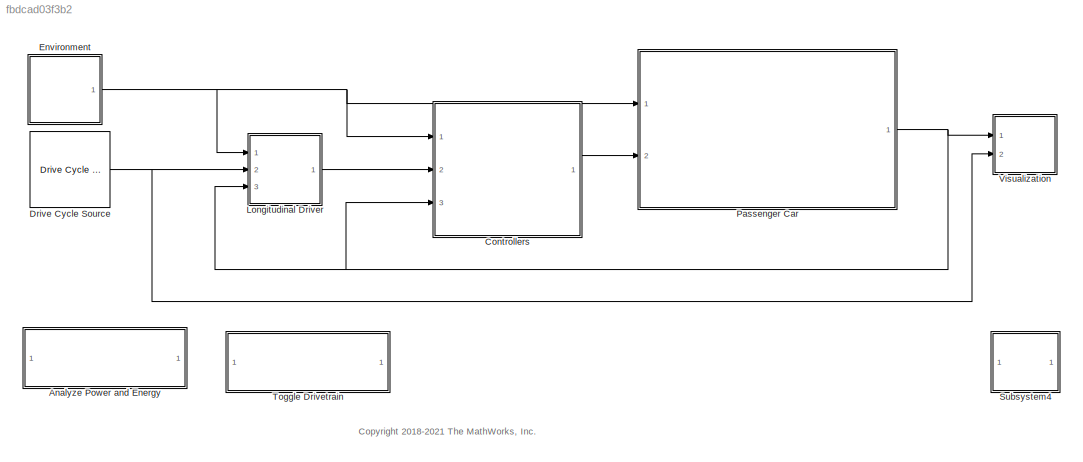
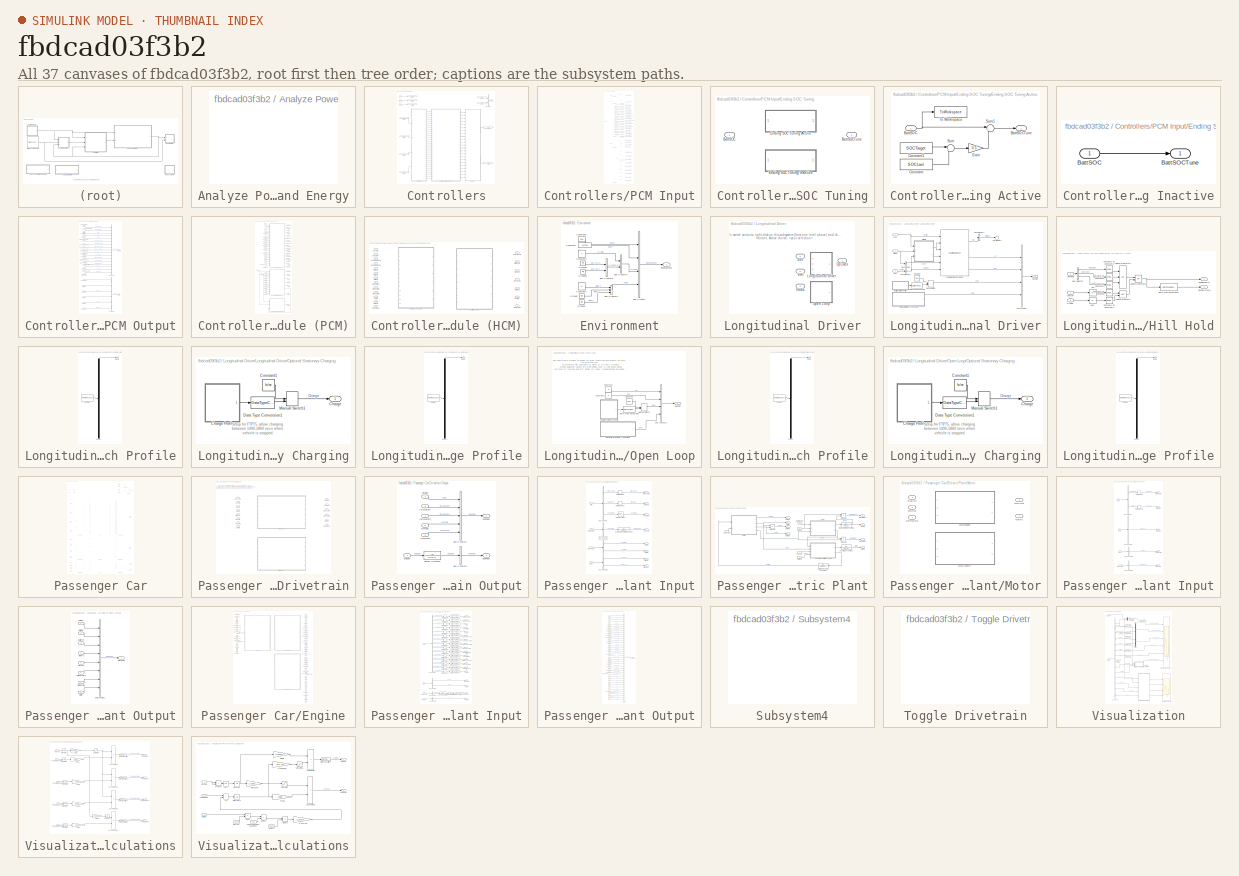
[diagram: thumbnail index - all 37 canvases of the model, root first then tree order]
MODEL slx_fbdcad03f3b2
KIND model
CONFIG AbsTol = auto
CONFIG EnableMultiTasking = on
CONFIG MaxStep = auto
CONFIG MinStep = auto
CONFIG RelTol = 1e-3
CONFIG SampleTimeConstraint = Unconstrained
CONFIG SolverName = ode23t
CONFIG StartTime = 0
CONFIG StopTime = 2474
BLOCK [SubSystem] Analyze Power and Energy
  OpenFcn = edit GenerateEnergyReport
  Ports = []
  RequestExecContextInheritance = off
BLOCK [SubSystem] Controllers
  Ports = [3, 1]
  RequestExecContextInheritance = off
BLOCK [BusCreator] Controllers/Bus Creator
  DisplayOption = bar
  InheritFromInputs = on
  Inputs = 2
  Ports = [2, 1]
BLOCK [Outport] Controllers/Ctrl
  VectorParamsAs1DForOutWhenUnconnected = off
BLOCK [Inport] Controllers/Env
BLOCK [From] Controllers/From1
  GotoTag = EngCtrl
BLOCK [From] Controllers/From10
  GotoTag = Environment
BLOCK [From] Controllers/From11
  GotoTag = VehPlnt
BLOCK [From] Controllers/From2
  GotoTag = PtCtrl
BLOCK [From] Controllers/From3
  GotoTag = PtCtrl
BLOCK [From] Controllers/From9
  GotoTag = OpCmds
BLOCK [Goto] Controllers/Goto1
  GotoTag = OpCmds
BLOCK [Goto] Controllers/Goto2
  GotoTag = VehPlnt
BLOCK [Goto] Controllers/Goto3
  GotoTag = EngCtrl
BLOCK [Goto] Controllers/Goto5
  GotoTag = PtCtrl
BLOCK [Goto] Controllers/Goto7
  GotoTag = Environment
BLOCK [Inport] Controllers/OpCmds
  Port = 2
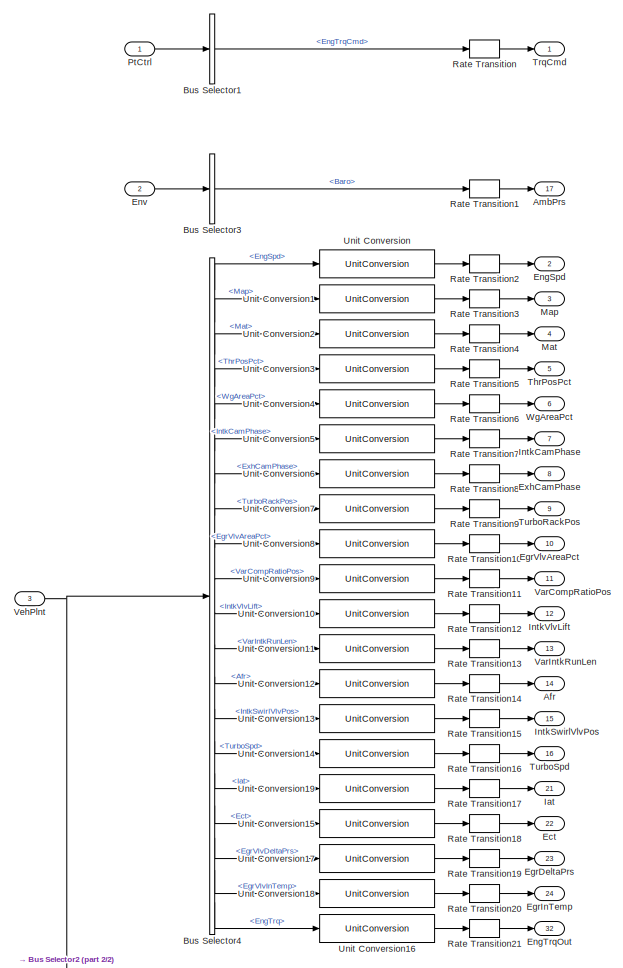
[diagram: Controllers/PCM Input - part 1/2, full width, top band]
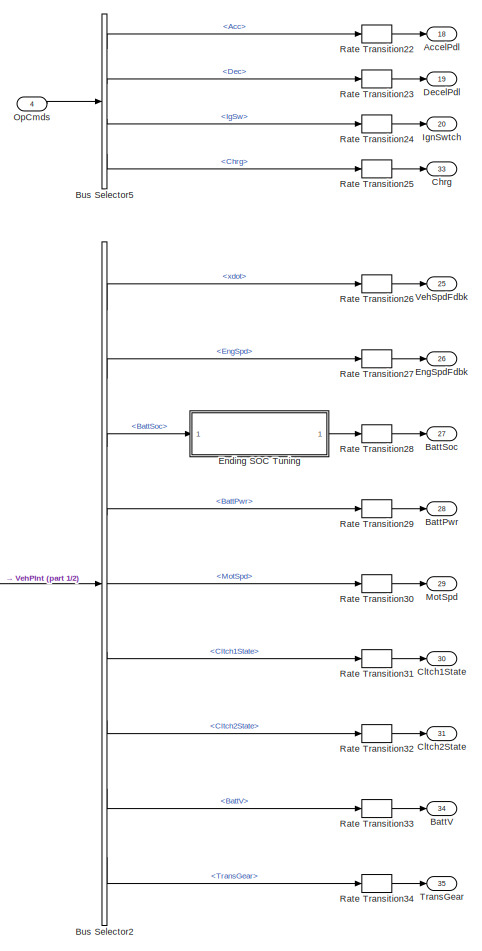
[diagram: Controllers/PCM Input - part 2/2, full width, bottom band]
BLOCK [SubSystem] Controllers/PCM Input
  Ports = [4, 35]
  RequestExecContextInheritance = off
BLOCK [Outport] Controllers/PCM Input/AccelPdl
  Port = 18
  VectorParamsAs1DForOutWhenUnconnected = off
BLOCK [Outport] Controllers/PCM Input/Afr
  Port = 14
  VectorParamsAs1DForOutWhenUnconnected = off
BLOCK [Outport] Controllers/PCM Input/AmbPrs
  Port = 17
  VectorParamsAs1DForOutWhenUnconnected = off
BLOCK [Outport] Controllers/PCM Input/BattPwr
  Port = 28
  VectorParamsAs1DForOutWhenUnconnected = off
BLOCK [Outport] Controllers/PCM Input/BattSoc
  Port = 27
  VectorParamsAs1DForOutWhenUnconnected = off
BLOCK [Outport] Controllers/PCM Input/BattV
  Port = 34
  VectorParamsAs1DForOutWhenUnconnected = off
BLOCK [BusSelector] Controllers/PCM Input/Bus Selector1
  OutputSignals = EngTrqCmd
  Ports = [1, 1]
BLOCK [BusSelector] Controllers/PCM Input/Bus Selector2
  OutputSignals = Veh.xdot,Eng.EngFdbk.EngSpd,Elec.BattSoc,Elec.BattPwr,Veh.MotSpd,Veh.Cltch1State,Veh.Cltch2State,Elec.BattV,Veh.TransGear
  Ports = [1, 9]
BLOCK [BusSelector] Controllers/PCM Input/Bus Selector3
  OutputSignals = Baro
  Ports = [1, 1]
BLOCK [BusSelector] Controllers/PCM Input/Bus Selector4
  OutputSignals = Eng.EngFdbkOut.EngSpd,Eng.EngFdbkOut.Map,Eng.EngFdbkOut.Mat,Eng.EngFdbkOut.ThrPosPct,Eng.EngFdbkOut.WgAreaPct,Eng.EngFdbkOut.IntkCamPhase,Eng.EngFdbkOut.ExhCamPhase,Eng.EngFdbkOut.TurboRackPos,Eng.EngFdbkOut.EgrVlvAreaPct,Eng.EngFdbkOut.VarCompRatioPos,Eng.EngFdbkOut.IntkVlvLift,Eng.EngFdbkOut.VarIntkRunLen,Eng.EngFdbkOut.Afr,Eng.EngFdbkOut.IntkSwirlVlvPos,Eng.EngFdbkOut.TurboSpd,Eng.EngFdbkOut.Ia...<+100ch>
  Ports = [1, 20]
BLOCK [BusSelector] Controllers/PCM Input/Bus Selector5
  OutputSignals = Acc,Dec,IgSw,Chrg
  Ports = [1, 4]
BLOCK [Outport] Controllers/PCM Input/Chrg
  Port = 33
  VectorParamsAs1DForOutWhenUnconnected = off
BLOCK [Outport] Controllers/PCM Input/Cltch1State
  Port = 30
  VectorParamsAs1DForOutWhenUnconnected = off
BLOCK [Outport] Controllers/PCM Input/Cltch2State
  Port = 31
  VectorParamsAs1DForOutWhenUnconnected = off
BLOCK [Outport] Controllers/PCM Input/DecelPdl
  Port = 19
  VectorParamsAs1DForOutWhenUnconnected = off
BLOCK [Outport] Controllers/PCM Input/Ect
  Port = 22
  VectorParamsAs1DForOutWhenUnconnected = off
BLOCK [Outport] Controllers/PCM Input/EgrDeltaPrs
  Port = 23
  VectorParamsAs1DForOutWhenUnconnected = off
BLOCK [Outport] Controllers/PCM Input/EgrInTemp
  Port = 24
  VectorParamsAs1DForOutWhenUnconnected = off
BLOCK [Outport] Controllers/PCM Input/EgrVlvAreaPct
  Port = 10
  VectorParamsAs1DForOutWhenUnconnected = off
BLOCK [SubSystem] Controllers/PCM Input/Ending SOC Tuning
  LabelModeActiveChoice = 0
  Ports = [1, 1]
  RequestExecContextInheritance = off
  Variant = on
  VariantControlMode = label
BLOCK [Inport] Controllers/PCM Input/Ending SOC Tuning/BattSOC
BLOCK [Outport] Controllers/PCM Input/Ending SOC Tuning/BattSOCTune
BLOCK [SubSystem] Controllers/PCM Input/Ending SOC Tuning/Ending SOC Tuning Active
  InitFcn = if ~exist('SOCLast','var')\n   assignin('base','SOCLast',str2num(get_param(gcb,'SOCTarget')));\nend
  Ports = [1, 1]
  RequestExecContextInheritance = off
  VariantControl = 1
BLOCK [Inport] Controllers/PCM Input/Ending SOC Tuning/Ending SOC Tuning Active/BattSOC
BLOCK [Outport] Controllers/PCM Input/Ending SOC Tuning/Ending SOC Tuning Active/BattSOCTune
BLOCK [Constant] Controllers/PCM Input/Ending SOC Tuning/Ending SOC Tuning Active/Constant
  Value = SOCLast
BLOCK [Constant] Controllers/PCM Input/Ending SOC Tuning/Ending SOC Tuning Active/Constant1
  Value = SOCTarget
BLOCK [Gain] Controllers/PCM Input/Ending SOC Tuning/Ending SOC Tuning Active/Gain
  Gain = 0.5
BLOCK [Sum] Controllers/PCM Input/Ending SOC Tuning/Ending SOC Tuning Active/Sum
  Inputs = |+-
  Ports = [2, 1]
BLOCK [Sum] Controllers/PCM Input/Ending SOC Tuning/Ending SOC Tuning Active/Sum1
  Inputs = |+-
  Ports = [2, 1]
BLOCK [ToWorkspace] Controllers/PCM Input/Ending SOC Tuning/Ending SOC Tuning Active/To Workspace
  FixptAsFi = on
  MaxDataPoints = 1
  Ports = [1]
  SampleTime = -1
  VariableName = SOCLast
BLOCK [SubSystem] Controllers/PCM Input/Ending SOC Tuning/Ending SOC Tuning Inactive
  Ports = [1, 1]
  RequestExecContextInheritance = off
  VariantControl = 0
BLOCK [Inport] Controllers/PCM Input/Ending SOC Tuning/Ending SOC Tuning Inactive/BattSOC
BLOCK [Outport] Controllers/PCM Input/Ending SOC Tuning/Ending SOC Tuning Inactive/BattSOCTune
BLOCK [Outport] Controllers/PCM Input/EngSpd
  Port = 2
  VectorParamsAs1DForOutWhenUnconnected = off
BLOCK [Outport] Controllers/PCM Input/EngSpdFdbk
  Port = 26
  VectorParamsAs1DForOutWhenUnconnected = off
BLOCK [Outport] Controllers/PCM Input/EngTrqOut
  Port = 32
  Unit = N*m
  VectorParamsAs1DForOutWhenUnconnected = off
BLOCK [Inport] Controllers/PCM Input/Env
  Port = 2
BLOCK [Outport] Controllers/PCM Input/ExhCamPhase
  Port = 8
  VectorParamsAs1DForOutWhenUnconnected = off
BLOCK [Outport] Controllers/PCM Input/Iat
  Port = 21
  VectorParamsAs1DForOutWhenUnconnected = off
BLOCK [Outport] Controllers/PCM Input/IgnSwtch
  Port = 20
  VectorParamsAs1DForOutWhenUnconnected = off
BLOCK [Outport] Controllers/PCM Input/IntkCamPhase
  Port = 7
  VectorParamsAs1DForOutWhenUnconnected = off
BLOCK [Outport] Controllers/PCM Input/IntkSwirlVlvPos
  Port = 15
  VectorParamsAs1DForOutWhenUnconnected = off
BLOCK [Outport] Controllers/PCM Input/IntkVlvLift
  Port = 12
  VectorParamsAs1DForOutWhenUnconnected = off
BLOCK [Outport] Controllers/PCM Input/Map
  Port = 3
  VectorParamsAs1DForOutWhenUnconnected = off
BLOCK [Outport] Controllers/PCM Input/Mat
  Port = 4
  VectorParamsAs1DForOutWhenUnconnected = off
BLOCK [Outport] Controllers/PCM Input/MotSpd
  Port = 29
  VectorParamsAs1DForOutWhenUnconnected = off
BLOCK [Inport] Controllers/PCM Input/OpCmds
  Port = 4
BLOCK [Inport] Controllers/PCM Input/PtCtrl
BLOCK [RateTransition] Controllers/PCM Input/Rate Transition
BLOCK [RateTransition] Controllers/PCM Input/Rate Transition1
BLOCK [RateTransition] Controllers/PCM Input/Rate Transition10
BLOCK [RateTransition] Controllers/PCM Input/Rate Transition11
BLOCK [RateTransition] Controllers/PCM Input/Rate Transition12
BLOCK [RateTransition] Controllers/PCM Input/Rate Transition13
BLOCK [RateTransition] Controllers/PCM Input/Rate Transition14
BLOCK [RateTransition] Controllers/PCM Input/Rate Transition15
BLOCK [RateTransition] Controllers/PCM Input/Rate Transition16
BLOCK [RateTransition] Controllers/PCM Input/Rate Transition17
BLOCK [RateTransition] Controllers/PCM Input/Rate Transition18
BLOCK [RateTransition] Controllers/PCM Input/Rate Transition19
BLOCK [RateTransition] Controllers/PCM Input/Rate Transition2
BLOCK [RateTransition] Controllers/PCM Input/Rate Transition20
BLOCK [RateTransition] Controllers/PCM Input/Rate Transition21
BLOCK [RateTransition] Controllers/PCM Input/Rate Transition22
BLOCK [RateTransition] Controllers/PCM Input/Rate Transition23
BLOCK [RateTransition] Controllers/PCM Input/Rate Transition24
BLOCK [RateTransition] Controllers/PCM Input/Rate Transition25
BLOCK [RateTransition] Controllers/PCM Input/Rate Transition26
BLOCK [RateTransition] Controllers/PCM Input/Rate Transition27
BLOCK [RateTransition] Controllers/PCM Input/Rate Transition28
BLOCK [RateTransition] Controllers/PCM Input/Rate Transition29
BLOCK [RateTransition] Controllers/PCM Input/Rate Transition3
BLOCK [RateTransition] Controllers/PCM Input/Rate Transition30
BLOCK [RateTransition] Controllers/PCM Input/Rate Transition31
BLOCK [RateTransition] Controllers/PCM Input/Rate Transition32
BLOCK [RateTransition] Controllers/PCM Input/Rate Transition33
BLOCK [RateTransition] Controllers/PCM Input/Rate Transition34
BLOCK [RateTransition] Controllers/PCM Input/Rate Transition4
BLOCK [RateTransition] Controllers/PCM Input/Rate Transition5
BLOCK [RateTransition] Controllers/PCM Input/Rate Transition6
BLOCK [RateTransition] Controllers/PCM Input/Rate Transition7
BLOCK [RateTransition] Controllers/PCM Input/Rate Transition8
BLOCK [RateTransition] Controllers/PCM Input/Rate Transition9
BLOCK [Outport] Controllers/PCM Input/ThrPosPct
  Port = 5
  VectorParamsAs1DForOutWhenUnconnected = off
BLOCK [Outport] Controllers/PCM Input/TransGear
  Port = 35
  VectorParamsAs1DForOutWhenUnconnected = off
BLOCK [Outport] Controllers/PCM Input/TrqCmd
  VectorParamsAs1DForOutWhenUnconnected = off
BLOCK [Outport] Controllers/PCM Input/TurboRackPos
  Port = 9
  VectorParamsAs1DForOutWhenUnconnected = off
BLOCK [Outport] Controllers/PCM Input/TurboSpd
  Port = 16
  VectorParamsAs1DForOutWhenUnconnected = off
BLOCK [UnitConversion] Controllers/PCM Input/Unit Conversion
BLOCK [UnitConversion] Controllers/PCM Input/Unit Conversion1
BLOCK [UnitConversion] Controllers/PCM Input/Unit Conversion10
BLOCK [UnitConversion] Controllers/PCM Input/Unit Conversion11
BLOCK [UnitConversion] Controllers/PCM Input/Unit Conversion12
BLOCK [UnitConversion] Controllers/PCM Input/Unit Conversion13
BLOCK [UnitConversion] Controllers/PCM Input/Unit Conversion14
BLOCK [UnitConversion] Controllers/PCM Input/Unit Conversion15
BLOCK [UnitConversion] Controllers/PCM Input/Unit Conversion16
BLOCK [UnitConversion] Controllers/PCM Input/Unit Conversion17
BLOCK [UnitConversion] Controllers/PCM Input/Unit Conversion18
BLOCK [UnitConversion] Controllers/PCM Input/Unit Conversion19
BLOCK [UnitConversion] Controllers/PCM Input/Unit Conversion2
BLOCK [UnitConversion] Controllers/PCM Input/Unit Conversion3
BLOCK [UnitConversion] Controllers/PCM Input/Unit Conversion4
BLOCK [UnitConversion] Controllers/PCM Input/Unit Conversion5
BLOCK [UnitConversion] Controllers/PCM Input/Unit Conversion6
BLOCK [UnitConversion] Controllers/PCM Input/Unit Conversion7
BLOCK [UnitConversion] Controllers/PCM Input/Unit Conversion8
BLOCK [UnitConversion] Controllers/PCM Input/Unit Conversion9
BLOCK [Outport] Controllers/PCM Input/VarCompRatioPos
  Port = 11
  VectorParamsAs1DForOutWhenUnconnected = off
BLOCK [Outport] Controllers/PCM Input/VarIntkRunLen
  Port = 13
  VectorParamsAs1DForOutWhenUnconnected = off
BLOCK [Inport] Controllers/PCM Input/VehPlnt
  Port = 3
BLOCK [Outport] Controllers/PCM Input/VehSpdFdbk
  Port = 25
  VectorParamsAs1DForOutWhenUnconnected = off
BLOCK [Outport] Controllers/PCM Input/WgAreaPct
  Port = 6
  VectorParamsAs1DForOutWhenUnconnected = off
BLOCK [SubSystem] Controllers/PCM Output
  Ports = [23, 2]
  RequestExecContextInheritance = off
BLOCK [Inport] Controllers/PCM Output/BrkCmd
  Port = 21
BLOCK [BusCreator] Controllers/PCM Output/Bus Creator1
  DisplayOption = bar
  InheritFromInputs = on
  Inputs = 6
  Ports = [6, 1]
BLOCK [BusCreator] Controllers/PCM Output/Bus Creator2
  DisplayOption = bar
  InheritFromInputs = on
  Inputs = 17
  Ports = [17, 1]
BLOCK [Inport] Controllers/PCM Output/ClsdLpFuelMult
  Port = 13
BLOCK [Inport] Controllers/PCM Output/Cltch1Cmd
  Port = 23
BLOCK [Inport] Controllers/PCM Output/EgrVlvAreaPctCmd
  Port = 9
BLOCK [Outport] Controllers/PCM Output/EngCtrl
  VectorParamsAs1DForOutWhenUnconnected = off
BLOCK [Inport] Controllers/PCM Output/EngTrqCmd
  Port = 18
BLOCK [Inport] Controllers/PCM Output/EstIntkPortFlw
  Port = 17
BLOCK [Inport] Controllers/PCM Output/ExhCamPhaseCmd
  Port = 7
BLOCK [Inport] Controllers/PCM Output/FuelMainSoi
  Port = 4
BLOCK [Inport] Controllers/PCM Output/GearCmd
  Port = 22
BLOCK [Inport] Controllers/PCM Output/InjPw
  Port = 3
BLOCK [Inport] Controllers/PCM Output/IntkCamPhaseCmd
  Port = 6
BLOCK [Inport] Controllers/PCM Output/IntkSwirlVlvPosCmd
  Port = 14
BLOCK [Inport] Controllers/PCM Output/IntkVlvLiftCmd
  Port = 11
BLOCK [Inport] Controllers/PCM Output/LoadCmd
  Port = 16
BLOCK [Inport] Controllers/PCM Output/MotTrqCmd
  Port = 20
BLOCK [Outport] Controllers/PCM Output/PtCtrl
  Port = 2
  VectorParamsAs1DForOutWhenUnconnected = off
BLOCK [Inport] Controllers/PCM Output/SpkAdv
  Port = 5
BLOCK [Inport] Controllers/PCM Output/StartCmd
  Port = 19
BLOCK [Inport] Controllers/PCM Output/ThrPosPctCmd
BLOCK [Inport] Controllers/PCM Output/TrqCmdISC
  Port = 15
BLOCK [Inport] Controllers/PCM Output/TurboRackPosCmd
  Port = 8
BLOCK [Inport] Controllers/PCM Output/VarCompRatioPosCmd
  Port = 10
BLOCK [Inport] Controllers/PCM Output/VarIntkRunLenCmd
  Port = 12
BLOCK [Inport] Controllers/PCM Output/WgAreaPctCmd
  Port = 2
BLOCK [SubSystem] Controllers/Powertrain Control Module (PCM)
  Ports = [35, 23]
  RequestExecContextInheritance = off
BLOCK [Inport] Controllers/Powertrain Control Module (PCM)/AccelPdl
  Port = 18
BLOCK [Inport] Controllers/Powertrain Control Module (PCM)/Afr
  Port = 14
BLOCK [Inport] Controllers/Powertrain Control Module (PCM)/AmbPrs
  Port = 17
BLOCK [Inport] Controllers/Powertrain Control Module (PCM)/BattPwr
  Port = 28
BLOCK [Inport] Controllers/Powertrain Control Module (PCM)/BattSoc
  Port = 27
BLOCK [Inport] Controllers/Powertrain Control Module (PCM)/BattV
  Port = 34
BLOCK [Outport] Controllers/Powertrain Control Module (PCM)/BrkCmd
  Port = 21
  VectorParamsAs1DForOutWhenUnconnected = off
BLOCK [Inport] Controllers/Powertrain Control Module (PCM)/Chrg
  Port = 33
BLOCK [Outport] Controllers/Powertrain Control Module (PCM)/ClsdLpFuelMult
  Port = 13
  VectorParamsAs1DForOutWhenUnconnected = off
BLOCK [Outport] Controllers/Powertrain Control Module (PCM)/Cltch1Cmd
  Port = 23
  VectorParamsAs1DForOutWhenUnconnected = off
BLOCK [Inport] Controllers/Powertrain Control Module (PCM)/Cltch1State
  Port = 30
BLOCK [Inport] Controllers/Powertrain Control Module (PCM)/Cltch2State
  Port = 31
BLOCK [Inport] Controllers/Powertrain Control Module (PCM)/DecelPdl
  Port = 19
BLOCK [Inport] Controllers/Powertrain Control Module (PCM)/Ect
  Port = 22
BLOCK [Inport] Controllers/Powertrain Control Module (PCM)/EgrVlvAreaPct
  Port = 10
BLOCK [Outport] Controllers/Powertrain Control Module (PCM)/EgrVlvAreaPctCmd
  Port = 9
  VectorParamsAs1DForOutWhenUnconnected = off
BLOCK [Inport] Controllers/Powertrain Control Module (PCM)/EgrVlvDeltaPrs
  Port = 23
BLOCK [Inport] Controllers/Powertrain Control Module (PCM)/EgrVlvInTemp
  Port = 24
BLOCK [Inport] Controllers/Powertrain Control Module (PCM)/EngSpd
  Port = 2
BLOCK [Inport] Controllers/Powertrain Control Module (PCM)/EngSpdFdbk
  Port = 26
BLOCK [Outport] Controllers/Powertrain Control Module (PCM)/EngTrqCmd
  Port = 18
  VectorParamsAs1DForOutWhenUnconnected = off
BLOCK [Inport] Controllers/Powertrain Control Module (PCM)/EngTrqOut
  Port = 32
BLOCK [Outport] Controllers/Powertrain Control Module (PCM)/EstIntkPortFlw
  Port = 17
  VectorParamsAs1DForOutWhenUnconnected = off
BLOCK [Inport] Controllers/Powertrain Control Module (PCM)/ExhCamPhase
  Port = 8
BLOCK [Outport] Controllers/Powertrain Control Module (PCM)/ExhCamPhaseCmd
  Port = 7
  VectorParamsAs1DForOutWhenUnconnected = off
BLOCK [Outport] Controllers/Powertrain Control Module (PCM)/FuelMainSoi
  Port = 4
  VectorParamsAs1DForOutWhenUnconnected = off
BLOCK [Outport] Controllers/Powertrain Control Module (PCM)/GearCmd
  Port = 22
  VectorParamsAs1DForOutWhenUnconnected = off
BLOCK [SubSystem] Controllers/Powertrain Control Module (PCM)/Hybrid Control Module (HCM)
  LabelModeActiveChoice = OptimalControl
  Ports = [13, 7]
  RequestExecContextInheritance = off
  Variant = on
  VariantControlMode = label
BLOCK [Inport] Controllers/Powertrain Control Module (PCM)/Hybrid Control Module (HCM)/AccelPdl
BLOCK [Inport] Controllers/Powertrain Control Module (PCM)/Hybrid Control Module (HCM)/BattPwr
  Port = 6
BLOCK [Inport] Controllers/Powertrain Control Module (PCM)/Hybrid Control Module (HCM)/BattSoc
  Port = 5
BLOCK [Inport] Controllers/Powertrain Control Module (PCM)/Hybrid Control Module (HCM)/BattVolt
  Port = 12
BLOCK [Outport] Controllers/Powertrain Control Module (PCM)/Hybrid Control Module (HCM)/BrkCmd
  Port = 3
  VectorParamsAs1DForOutWhenUnconnected = off
BLOCK [Inport] Controllers/Powertrain Control Module (PCM)/Hybrid Control Module (HCM)/Chrg
  Port = 11
BLOCK [Outport] Controllers/Powertrain Control Module (PCM)/Hybrid Control Module (HCM)/Cltch1Cmd
  Port = 4
  VectorParamsAs1DForOutWhenUnconnected = off
BLOCK [Inport] Controllers/Powertrain Control Module (PCM)/Hybrid Control Module (HCM)/Cltch1State
  Port = 9
BLOCK [Inport] Controllers/Powertrain Control Module (PCM)/Hybrid Control Module (HCM)/Cltch2State
  Port = 10
BLOCK [Inport] Controllers/Powertrain Control Module (PCM)/Hybrid Control Module (HCM)/DecelPdl
  Port = 2
BLOCK [Inport] Controllers/Powertrain Control Module (PCM)/Hybrid Control Module (HCM)/EngSpdFdbk
  Port = 4
BLOCK [Outport] Controllers/Powertrain Control Module (PCM)/Hybrid Control Module (HCM)/EngTrqCmd
  VectorParamsAs1DForOutWhenUnconnected = off
BLOCK [Inport] Controllers/Powertrain Control Module (PCM)/Hybrid Control Module (HCM)/EngTrqOut
  Port = 8
BLOCK [Inport] Controllers/Powertrain Control Module (PCM)/Hybrid Control Module (HCM)/MtrSpd
  Port = 7
BLOCK [Outport] Controllers/Powertrain Control Module (PCM)/Hybrid Control Module (HCM)/MtrTrqCmd
  Port = 2
  VectorParamsAs1DForOutWhenUnconnected = off
BLOCK [Outport] Controllers/Powertrain Control Module (PCM)/Hybrid Control Module (HCM)/Neutral
  Port = 6
  VectorParamsAs1DForOutWhenUnconnected = off
BLOCK [ModelReference] Controllers/Powertrain Control Module (PCM)/Hybrid Control Module (HCM)/Optimal Control
  ModelNameDialog = HevP2OptimalController.slx
  ModelReferenceVersion = 4.2
  Ports = [8, 7]
  VariantControl = OptimalControl
BLOCK [ModelReference] Controllers/Powertrain Control Module (PCM)/Hybrid Control Module (HCM)/Rule-Based Control
  ModelNameDialog = HevP2PowertrainController.slx
  ModelReferenceVersion = 4.1
  Ports = [13, 6]
  VariantControl = RuleBasedControl
BLOCK [Outport] Controllers/Powertrain Control Module (PCM)/Hybrid Control Module (HCM)/StartCmd
  Port = 5
  VectorParamsAs1DForOutWhenUnconnected = off
BLOCK [Inport] Controllers/Powertrain Control Module (PCM)/Hybrid Control Module (HCM)/TransGear
  Port = 13
BLOCK [Inport] Controllers/Powertrain Control Module (PCM)/Hybrid Control Module (HCM)/VehSpdFdbk
  Port = 3
BLOCK [Outport] Controllers/Powertrain Control Module (PCM)/Hybrid Control Module (HCM)/WhlTrqCmd
  Port = 7
  VectorParamsAs1DForOutWhenUnconnected = off
BLOCK [Inport] Controllers/Powertrain Control Module (PCM)/Iat
  Port = 21
BLOCK [Inport] Controllers/Powertrain Control Module (PCM)/IgnSwtch
  Port = 20
BLOCK [Outport] Controllers/Powertrain Control Module (PCM)/InjPw
  Port = 3
  VectorParamsAs1DForOutWhenUnconnected = off
BLOCK [Inport] Controllers/Powertrain Control Module (PCM)/IntkCamPhase
  Port = 7
BLOCK [Outport] Controllers/Powertrain Control Module (PCM)/IntkCamPhaseCmd
  Port = 6
  VectorParamsAs1DForOutWhenUnconnected = off
BLOCK [Inport] Controllers/Powertrain Control Module (PCM)/IntkSwirlVlvPos
  Port = 15
BLOCK [Outport] Controllers/Powertrain Control Module (PCM)/IntkSwirlVlvPosCmd
  Port = 14
  VectorParamsAs1DForOutWhenUnconnected = off
BLOCK [Inport] Controllers/Powertrain Control Module (PCM)/IntkVlvLift
  Port = 12
BLOCK [Outport] Controllers/Powertrain Control Module (PCM)/IntkVlvLiftCmd
  Port = 11
  VectorParamsAs1DForOutWhenUnconnected = off
BLOCK [Outport] Controllers/Powertrain Control Module (PCM)/LoadCmd
  Port = 16
  VectorParamsAs1DForOutWhenUnconnected = off
BLOCK [Inport] Controllers/Powertrain Control Module (PCM)/Map
  Port = 3
BLOCK [Inport] Controllers/Powertrain Control Module (PCM)/Mat
  Port = 4
BLOCK [Inport] Controllers/Powertrain Control Module (PCM)/MotSpd
  Port = 29
BLOCK [Outport] Controllers/Powertrain Control Module (PCM)/MotTrqCmd
  Port = 20
  VectorParamsAs1DForOutWhenUnconnected = off
BLOCK [ModelReference] Controllers/Powertrain Control Module (PCM)/SiEngineController
  ModelNameDialog = SiEngineController.slx
  ModelReferenceVersion = 4.6
  Ports = [22, 17]
BLOCK [Outport] Controllers/Powertrain Control Module (PCM)/SpdAdv
  Port = 5
  VectorParamsAs1DForOutWhenUnconnected = off
BLOCK [Outport] Controllers/Powertrain Control Module (PCM)/StartCmd
  Port = 19
  VectorParamsAs1DForOutWhenUnconnected = off
BLOCK [Terminator] Controllers/Powertrain Control Module (PCM)/Terminator
BLOCK [Inport] Controllers/Powertrain Control Module (PCM)/ThrPosPct
  Port = 5
BLOCK [Outport] Controllers/Powertrain Control Module (PCM)/ThrPosPctCmd
  VectorParamsAs1DForOutWhenUnconnected = off
BLOCK [Inport] Controllers/Powertrain Control Module (PCM)/TransGear
  Port = 35
BLOCK [ModelReference] Controllers/Powertrain Control Module (PCM)/Transmission Control Module (TCM)
  ModelNameDialog = HevP2TransmissionController.slx
  ModelReferenceVersion = 8.1
  Ports = [3, 1]
BLOCK [Inport] Controllers/Powertrain Control Module (PCM)/TrqCmd
BLOCK [Outport] Controllers/Powertrain Control Module (PCM)/TrqCmdISC
  Port = 15
  VectorParamsAs1DForOutWhenUnconnected = off
BLOCK [Inport] Controllers/Powertrain Control Module (PCM)/TurboRackPos
  Port = 9
BLOCK [Outport] Controllers/Powertrain Control Module (PCM)/TurboRackPosCmd
  Port = 8
  VectorParamsAs1DForOutWhenUnconnected = off
BLOCK [Inport] Controllers/Powertrain Control Module (PCM)/TurboSpd
  Port = 16
BLOCK [Inport] Controllers/Powertrain Control Module (PCM)/VarCompRatioPos
  Port = 11
BLOCK [Outport] Controllers/Powertrain Control Module (PCM)/VarCompRatioPosCmd
  Port = 10
  VectorParamsAs1DForOutWhenUnconnected = off
BLOCK [Inport] Controllers/Powertrain Control Module (PCM)/VarIntkRunLen
  Port = 13
BLOCK [Outport] Controllers/Powertrain Control Module (PCM)/VarIntkRunLenCmd
  Port = 12
  VectorParamsAs1DForOutWhenUnconnected = off
BLOCK [Inport] Controllers/Powertrain Control Module (PCM)/VehSpdFdbk
  Port = 25
BLOCK [Inport] Controllers/Powertrain Control Module (PCM)/WgAreaPct
  Port = 6
BLOCK [Outport] Controllers/Powertrain Control Module (PCM)/WgAreaPctCmd
  Port = 2
  VectorParamsAs1DForOutWhenUnconnected = off
BLOCK [Inport] Controllers/VehPlnt
  Port = 3
BLOCK [Reference] Drive Cycle Source  REF=autolibshared/Drive Cycle Source
  AttributesFormatString = %<cycleVar> (%<tfinal>)
  Ports = [0, 1]
  SourceBlock = autolibshared/Drive Cycle Source
  SourceProductBaseCode = PW,DR,MT,VE
  SourceType = Drive Cycle Source
BLOCK [SubSystem] Environment
  NameLocation = top
  Ports = [0, 1]
  RequestExecContextInheritance = off
BLOCK [BusCreator] Environment/Bus Creator
  DisplayOption = bar
  InheritFromInputs = on
  Inputs = 4
  Ports = [4, 1]
BLOCK [BusCreator] Environment/Bus Creator3
  DisplayOption = bar
  InheritFromInputs = on
  Inputs = 3
  Ports = [3, 1]
BLOCK [BusCreator] Environment/Bus Creator4
  DisplayOption = bar
  InheritFromInputs = on
  Inputs = 2
  Ports = [2, 1]
BLOCK [BusCreator] Environment/Bus Creator5
  DisplayOption = bar
  InheritFromInputs = on
  Inputs = 2
  Ports = [2, 1]
BLOCK [Constant] Environment/Constant2
  Value = 0
BLOCK [Constant] Environment/Constant3
  Value = 0
BLOCK [Constant] Environment/Constant6
  Value = 300
BLOCK [Constant] Environment/Constant7
  Value = 101325
BLOCK [Outport] Environment/Environment
  VectorParamsAs1DForOutWhenUnconnected = off
BLOCK [Ground] Environment/Ground
BLOCK [Ground] Environment/Ground1
BLOCK [Ground] Environment/Ground2
BLOCK [Ground] Environment/Ground3
BLOCK [SubSystem] Longitudinal Driver
  LabelModeActiveChoice = 0
  Ports = [3, 1]
  RequestExecContextInheritance = off
  Variant = on
  VariantControl = Variant1
  VariantControlMode = label
BLOCK [Outport] Longitudinal Driver/ OpCmds
  VectorParamsAs1DForOutWhenUnconnected = off
BLOCK [Inport] Longitudinal Driver/Env
BLOCK [SubSystem] Longitudinal Driver/Longitudinal Driver
  Ports = [3, 1]
  RequestExecContextInheritance = off
  VariantControl = 0
BLOCK [BusCreator] Longitudinal Driver/Longitudinal Driver/Bus Creator1
  DisplayOption = bar
  InheritFromInputs = on
  Inputs = 4
  Ports = [4, 1]
BLOCK [BusSelector] Longitudinal Driver/Longitudinal Driver/Bus Selector
  OutputSignals = Veh.xdot
  Ports = [1, 1]
BLOCK [BusSelector] Longitudinal Driver/Longitudinal Driver/Bus Selector1
  OutputSignals = ErrMax
  Ports = [1, 1]
BLOCK [BusSelector] Longitudinal Driver/Longitudinal Driver/Bus Selector2
  OutputSignals = Ground.Grade
  Ports = [1, 1]
BLOCK [Constant] Longitudinal Driver/Longitudinal Driver/Constant
  Value = false
BLOCK [DataTypeConversion] Longitudinal Driver/Longitudinal Driver/Data Type Conversion
  OutDataTypeStr = boolean
  RndMeth = Floor
  SaturateOnIntegerOverflow = off
BLOCK [Inport] Longitudinal Driver/Longitudinal Driver/Env
BLOCK [SubSystem] Longitudinal Driver/Longitudinal Driver/Hill Hold
  Ports = [3, 2]
  RequestExecContextInheritance = off
BLOCK [Abs] Longitudinal Driver/Longitudinal Driver/Hill Hold/Abs
  SaturateOnIntegerOverflow = off
  ZeroCross = off
BLOCK [Abs] Longitudinal Driver/Longitudinal Driver/Hill Hold/Abs1
  SaturateOnIntegerOverflow = off
  ZeroCross = off
BLOCK [BusSelector] Longitudinal Driver/Longitudinal Driver/Hill Hold/Bus Selector
  OutputSignals = Eng.EngFdbk.EngSpd,Elec.BattSoc,Veh.xdot
  Ports = [1, 3]
BLOCK [Reference] Longitudinal Driver/Longitudinal Driver/Hill Hold/Compare To Constant  REF=simulink/Logic and Bit
Operations/Compare
To Constant
  Ports = [1, 1]
  SourceBlock = simulink/Logic and Bit\nOperations/Compare\nTo Constant
  SourceProductBaseCode = SL
  SourceType = Compare To Constant
BLOCK [Reference] Longitudinal Driver/Longitudinal Driver/Hill Hold/Compare To Constant1  REF=simulink/Logic and Bit
Operations/Compare
To Constant
  Ports = [1, 1]
  SourceBlock = simulink/Logic and Bit\nOperations/Compare\nTo Constant
  SourceProductBaseCode = SL
  SourceType = Compare To Constant
BLOCK [Reference] Longitudinal Driver/Longitudinal Driver/Hill Hold/Compare To Constant2  REF=simulink/Logic and Bit
Operations/Compare
To Constant
  Ports = [1, 1]
  SourceBlock = simulink/Logic and Bit\nOperations/Compare\nTo Constant
  SourceProductBaseCode = SL
  SourceType = Compare To Constant
BLOCK [Reference] Longitudinal Driver/Longitudinal Driver/Hill Hold/Compare To Constant3  REF=simulink/Logic and Bit
Operations/Compare
To Constant
  Ports = [1, 1]
  SourceBlock = simulink/Logic and Bit\nOperations/Compare\nTo Constant
  SourceProductBaseCode = SL
  SourceType = Compare To Constant
BLOCK [Reference] Longitudinal Driver/Longitudinal Driver/Hill Hold/Compare To Constant4  REF=simulink/Logic and Bit
Operations/Compare
To Constant
  Ports = [1, 1]
  SourceBlock = simulink/Logic and Bit\nOperations/Compare\nTo Constant
  SourceProductBaseCode = SL
  SourceType = Compare To Constant
BLOCK [DataTypeConversion] Longitudinal Driver/Longitudinal Driver/Hill Hold/Data Type Conversion1
  RndMeth = Floor
  SaturateOnIntegerOverflow = off
BLOCK [Outport] Longitudinal Driver/Longitudinal Driver/Hill Hold/DecelOvrCmd
  Port = 2
BLOCK [Outport] Longitudinal Driver/Longitudinal Driver/Hill Hold/EnblDecelOvr
BLOCK [Inport] Longitudinal Driver/Longitudinal Driver/Hill Hold/Grade
  Port = 3
BLOCK [Logic] Longitudinal Driver/Longitudinal Driver/Hill Hold/Logical Operator
  AllPortsSameDT = off
  OutDataTypeStr = boolean
  Ports = [2, 1]
BLOCK [Logic] Longitudinal Driver/Longitudinal Driver/Hill Hold/Logical Operator1
  AllPortsSameDT = off
  Inputs = 3
  OutDataTypeStr = boolean
  Ports = [3, 1]
BLOCK [Logic] Longitudinal Driver/Longitudinal Driver/Hill Hold/Logical Operator2
  AllPortsSameDT = off
  Operator = OR
  OutDataTypeStr = boolean
  Ports = [2, 1]
BLOCK [Inport] Longitudinal Driver/Longitudinal Driver/Hill Hold/VehFdbk
  Port = 2
BLOCK [Inport] Longitudinal Driver/Longitudinal Driver/Hill Hold/xdotref
BLOCK [SubSystem] Longitudinal Driver/Longitudinal Driver/Ignition Switch Profile
  ClipboardFcn = sigbuilder_block('clipboard');
  CloseFcn = sigbuilder_block('close');
  ContinueFcn = sigbuilder_block('continue');
  CopyFcn = sigbuilder_block('copy');
  DeleteFcn = sigbuilder_block('delete');
  LoadFcn = sigbuilder_block('load');
  MaskHideContents = on
  ModelCloseFcn = sigbuilder_block('modelClose');
  NameChangeFcn = sigbuilder_block('namechange');
  OpenFcn = sigbuilder_block('open',[595.8 176.4 550.8 322.2 ]);
  PauseFcn = sigbuilder_block('pause');
  Ports = [0, 1]
  PreSaveFcn = sigbuilder_block('preSave');
  RequestExecContextInheritance = off
  StartFcn = sigbuilder_block('start');
  StopFcn = sigbuilder_block('stop');
  Tag = STV Subsys
BLOCK [Demux] Longitudinal Driver/Longitudinal Driver/Ignition Switch Profile/Demux
  DisplayOption = none
  Outputs = 1
  Ports = [1, 1]
  Tag = STV Demux
BLOCK [FromWorkspace] Longitudinal Driver/Longitudinal Driver/Ignition Switch Profile/FromWs
  Tag = STV FromWs
  VariableName = tuvar
BLOCK [Outport] Longitudinal Driver/Longitudinal Driver/Ignition Switch Profile/IGSW
  Tag = STV Outport
  VectorParamsAs1DForOutWhenUnconnected = off
BLOCK [Reference] Longitudinal Driver/Longitudinal Driver/Longitudinal Driver Model  REF=autolibshared/Longitudinal Driver
  Ports = [6, 3]
  SourceBlock = autolibshared/Longitudinal Driver
  SourceProductBaseCode = PW,DR,MT,VE
  SourceType = Longitudinal Driver
BLOCK [ManualSwitch] Longitudinal Driver/Longitudinal Driver/Manual Switch
BLOCK [Outport] Longitudinal Driver/Longitudinal Driver/OpCmds
  VectorParamsAs1DForOutWhenUnconnected = off
BLOCK [SubSystem] Longitudinal Driver/Longitudinal Driver/Optional Stationary Charging
  Ports = [0, 1]
  RequestExecContextInheritance = off
BLOCK [Outport] Longitudinal Driver/Longitudinal Driver/Optional Stationary Charging/Charge
  VectorParamsAs1DForOutWhenUnconnected = off
BLOCK [SubSystem] Longitudinal Driver/Longitudinal Driver/Optional Stationary Charging/Charge Profile
  ClipboardFcn = sigbuilder_block('clipboard');
  CloseFcn = sigbuilder_block('close');
  ContinueFcn = sigbuilder_block('continue');
  CopyFcn = sigbuilder_block('copy');
  DeleteFcn = sigbuilder_block('delete');
  LoadFcn = sigbuilder_block('load');
  MaskHideContents = on
  ModelCloseFcn = sigbuilder_block('modelClose');
  NameChangeFcn = sigbuilder_block('namechange');
  OpenFcn = sigbuilder_block('open',[6 30 1428 771.75 ]);
  PauseFcn = sigbuilder_block('pause');
  Ports = [0, 1]
  PreSaveFcn = sigbuilder_block('preSave');
  RequestExecContextInheritance = off
  StartFcn = sigbuilder_block('start');
  StopFcn = sigbuilder_block('stop');
  Tag = STV Subsys
BLOCK [Demux] Longitudinal Driver/Longitudinal Driver/Optional Stationary Charging/Charge Profile/Demux
  DisplayOption = none
  Outputs = 1
  Ports = [1, 1]
  Tag = STV Demux
BLOCK [FromWorkspace] Longitudinal Driver/Longitudinal Driver/Optional Stationary Charging/Charge Profile/FromWs
  Tag = STV FromWs
  VariableName = tuvar
BLOCK [Outport] Longitudinal Driver/Longitudinal Driver/Optional Stationary Charging/Charge Profile/IGSW
  Tag = STV Outport
  VectorParamsAs1DForOutWhenUnconnected = off
BLOCK [Constant] Longitudinal Driver/Longitudinal Driver/Optional Stationary Charging/Constant1
  Value = false
BLOCK [DataTypeConversion] Longitudinal Driver/Longitudinal Driver/Optional Stationary Charging/Data Type Conversion1
  OutDataTypeStr = boolean
  RndMeth = Floor
  SaturateOnIntegerOverflow = off
BLOCK [ManualSwitch] Longitudinal Driver/Longitudinal Driver/Optional Stationary Charging/Manual Switch1
BLOCK [Terminator] Longitudinal Driver/Longitudinal Driver/Terminator2
BLOCK [Inport] Longitudinal Driver/Longitudinal Driver/Vfdbk
  Port = 3
BLOCK [Inport] Longitudinal Driver/Longitudinal Driver/Vref
  Port = 2
BLOCK [SubSystem] Longitudinal Driver/Open Loop
  Ports = [0, 1]
  RequestExecContextInheritance = off
  VariantControl = 1
BLOCK [BusCreator] Longitudinal Driver/Open Loop/Bus Creator1
  DisplayOption = bar
  InheritFromInputs = on
  Inputs = 4
  Ports = [4, 1]
BLOCK [Constant] Longitudinal Driver/Open Loop/Constant
  Value = false
BLOCK [Constant] Longitudinal Driver/Open Loop/Constant1
  Value = 0
BLOCK [Constant] Longitudinal Driver/Open Loop/Constant2
  Value = 0
BLOCK [DataTypeConversion] Longitudinal Driver/Open Loop/Data Type Conversion
  OutDataTypeStr = boolean
  RndMeth = Floor
  SaturateOnIntegerOverflow = off
BLOCK [SubSystem] Longitudinal Driver/Open Loop/Ignition Switch Profile
  ClipboardFcn = sigbuilder_block('clipboard');
  CloseFcn = sigbuilder_block('close');
  ContinueFcn = sigbuilder_block('continue');
  CopyFcn = sigbuilder_block('copy');
  DeleteFcn = sigbuilder_block('delete');
  LoadFcn = sigbuilder_block('load');
  MaskHideContents = on
  ModelCloseFcn = sigbuilder_block('modelClose');
  NameChangeFcn = sigbuilder_block('namechange');
  OpenFcn = sigbuilder_block('open',[595.8 176.4 550.8 322.2 ]);
  PauseFcn = sigbuilder_block('pause');
  Ports = [0, 1]
  PreSaveFcn = sigbuilder_block('preSave');
  RequestExecContextInheritance = off
  StartFcn = sigbuilder_block('start');
  StopFcn = sigbuilder_block('stop');
  Tag = STV Subsys
BLOCK [Demux] Longitudinal Driver/Open Loop/Ignition Switch Profile/Demux
  DisplayOption = none
  Outputs = 1
  Ports = [1, 1]
  Tag = STV Demux
BLOCK [FromWorkspace] Longitudinal Driver/Open Loop/Ignition Switch Profile/FromWs
  Tag = STV FromWs
  VariableName = tuvar
BLOCK [Outport] Longitudinal Driver/Open Loop/Ignition Switch Profile/IGSW
  Tag = STV Outport
  VectorParamsAs1DForOutWhenUnconnected = off
BLOCK [ManualSwitch] Longitudinal Driver/Open Loop/Manual Switch
BLOCK [Outport] Longitudinal Driver/Open Loop/OpCmds
  VectorParamsAs1DForOutWhenUnconnected = off
BLOCK [SubSystem] Longitudinal Driver/Open Loop/Optional Stationary Charging
  Ports = [0, 1]
  RequestExecContextInheritance = off
BLOCK [Outport] Longitudinal Driver/Open Loop/Optional Stationary Charging/Charge
  VectorParamsAs1DForOutWhenUnconnected = off
BLOCK [SubSystem] Longitudinal Driver/Open Loop/Optional Stationary Charging/Charge Profile
  ClipboardFcn = sigbuilder_block('clipboard');
  CloseFcn = sigbuilder_block('close');
  ContinueFcn = sigbuilder_block('continue');
  CopyFcn = sigbuilder_block('copy');
  DeleteFcn = sigbuilder_block('delete');
  LoadFcn = sigbuilder_block('load');
  MaskHideContents = on
  ModelCloseFcn = sigbuilder_block('modelClose');
  NameChangeFcn = sigbuilder_block('namechange');
  OpenFcn = sigbuilder_block('open',[6 30 1428 771.75 ]);
  PauseFcn = sigbuilder_block('pause');
  Ports = [0, 1]
  PreSaveFcn = sigbuilder_block('preSave');
  RequestExecContextInheritance = off
  StartFcn = sigbuilder_block('start');
  StopFcn = sigbuilder_block('stop');
  Tag = STV Subsys
BLOCK [Demux] Longitudinal Driver/Open Loop/Optional Stationary Charging/Charge Profile/Demux
  DisplayOption = none
  Outputs = 1
  Ports = [1, 1]
  Tag = STV Demux
BLOCK [FromWorkspace] Longitudinal Driver/Open Loop/Optional Stationary Charging/Charge Profile/FromWs
  Tag = STV FromWs
  VariableName = tuvar
BLOCK [Outport] Longitudinal Driver/Open Loop/Optional Stationary Charging/Charge Profile/IGSW
  Tag = STV Outport
  VectorParamsAs1DForOutWhenUnconnected = off
BLOCK [Constant] Longitudinal Driver/Open Loop/Optional Stationary Charging/Constant1
  Value = false
BLOCK [DataTypeConversion] Longitudinal Driver/Open Loop/Optional Stationary Charging/Data Type Conversion1
  OutDataTypeStr = boolean
  RndMeth = Floor
  SaturateOnIntegerOverflow = off
BLOCK [ManualSwitch] Longitudinal Driver/Open Loop/Optional Stationary Charging/Manual Switch1
BLOCK [Inport] Longitudinal Driver/Vfdbk 
  Port = 3
BLOCK [Inport] Longitudinal Driver/Vref 
  Port = 2
BLOCK [SubSystem] Passenger Car
  Ports = [2, 1]
  RequestExecContextInheritance = off
BLOCK [BusCreator] Passenger Car/Bus Creator
  DisplayOption = bar
  InheritFromInputs = on
  Inputs = 3
  Ports = [3, 1]
BLOCK [BusCreator] Passenger Car/Bus Creator1
  DisplayOption = bar
  InheritFromInputs = on
  Inputs = 2
  Ports = [2, 1]
BLOCK [Inport] Passenger Car/Ctrl
  Port = 2
BLOCK [SubSystem] Passenger Car/Drivetrain
  LabelModeActiveChoice = Powertrain Blockset
  Ports = [8, 6]
  RequestExecContextInheritance = off
  Variant = on
  VariantControlMode = label
BLOCK [SubSystem] Passenger Car/Drivetrain Output
  Ports = [6, 2]
  RequestExecContextInheritance = off
BLOCK [BusCreator] Passenger Car/Drivetrain Output/Bus Creator1
  DisplayOption = bar
  InheritFromInputs = on
  Inputs = 5
  Ports = [5, 1]
BLOCK [BusCreator] Passenger Car/Drivetrain Output/Bus Creator3
  DisplayOption = bar
  InheritFromInputs = on
  Inputs = 1
  Ports = [1, 1]
BLOCK [Inport] Passenger Car/Drivetrain Output/Cltch1State
  Port = 3
BLOCK [Inport] Passenger Car/Drivetrain Output/Cltch2State
  Port = 4
BLOCK [Outport] Passenger Car/Drivetrain Output/EngFdbk
  Port = 2
  VectorParamsAs1DForOutWhenUnconnected = off
BLOCK [Inport] Passenger Car/Drivetrain Output/EngSpd 
  Port = 2
BLOCK [Inport] Passenger Car/Drivetrain Output/MotSpd
  Port = 5
BLOCK [TransferFcn] Passenger Car/Drivetrain Output/Sensor Dynamics
  Denominator = [0.01 1]
BLOCK [Inport] Passenger Car/Drivetrain Output/TransGear
  Port = 6
BLOCK [Outport] Passenger Car/Drivetrain Output/VehFdbk
  VectorParamsAs1DForOutWhenUnconnected = off
BLOCK [Inport] Passenger Car/Drivetrain Output/VehSpd
BLOCK [SubSystem] Passenger Car/Drivetrain Plant Input
  Ports = [4, 8]
  RequestExecContextInheritance = off
BLOCK [Outport] Passenger Car/Drivetrain Plant Input/BrkCmd
  Port = 6
  VectorParamsAs1DForOutWhenUnconnected = off
BLOCK [BusSelector] Passenger Car/Drivetrain Plant Input/Bus Selector
  OutputSignals = PtCtrl.Cltch1Cmd,PtCtrl.BrkCmd,PtCtrl.GearCmd
  Ports = [1, 3]
BLOCK [BusSelector] Passenger Car/Drivetrain Plant Input/Bus Selector1
  OutputSignals = MotTrq,StartTrq
  Ports = [1, 2]
BLOCK [BusSelector] Passenger Car/Drivetrain Plant Input/Bus Selector2
  OutputSignals = EngTrq
  Ports = [1, 1]
BLOCK [BusSelector] Passenger Car/Drivetrain Plant Input/Bus Selector3
  OutputSignals = Ground.Grade,Wind.wind_x
  Ports = [1, 2]
BLOCK [Outport] Passenger Car/Drivetrain Plant Input/Cltch1Cmd
  VectorParamsAs1DForOutWhenUnconnected = off
BLOCK [Inport] Passenger Car/Drivetrain Plant Input/Ctrl
BLOCK [Inport] Passenger Car/Drivetrain Plant Input/ElecFdbk
  Port = 3
BLOCK [Inport] Passenger Car/Drivetrain Plant Input/EngFdbk
  Port = 2
BLOCK [Outport] Passenger Car/Drivetrain Plant Input/EngTrq
  Port = 2
  VectorParamsAs1DForOutWhenUnconnected = off
BLOCK [TransferFcn] Passenger Car/Drivetrain Plant Input/Engine Flex Plate Dynamics
  Denominator = [0.05 1]
BLOCK [Inport] Passenger Car/Drivetrain Plant Input/Env
  Port = 4
BLOCK [FirstOrderHold] Passenger Car/Drivetrain Plant Input/First Order Hold
  ErrorTolerance = 10e6
  OutputAlgorithm = Fast (Minimize Error)
BLOCK [FirstOrderHold] Passenger Car/Drivetrain Plant Input/First Order Hold1
  ErrorTolerance = 10e6
BLOCK [Outport] Passenger Car/Drivetrain Plant Input/GearCmd
  Port = 7
  VectorParamsAs1DForOutWhenUnconnected = off
BLOCK [Outport] Passenger Car/Drivetrain Plant Input/Grade
  Port = 4
  VectorParamsAs1DForOutWhenUnconnected = off
BLOCK [Outport] Passenger Car/Drivetrain Plant Input/MotTrq
  Port = 3
  VectorParamsAs1DForOutWhenUnconnected = off
BLOCK [RateTransition] Passenger Car/Drivetrain Plant Input/Rate Transition7
  Deterministic = off
BLOCK [Outport] Passenger Car/Drivetrain Plant Input/StartTrq
  Port = 8
  VectorParamsAs1DForOutWhenUnconnected = off
BLOCK [Outport] Passenger Car/Drivetrain Plant Input/WindVel
  Port = 5
  VectorParamsAs1DForOutWhenUnconnected = off
BLOCK [Inport] Passenger Car/Drivetrain/BrkCmd
  Port = 6
BLOCK [Inport] Passenger Car/Drivetrain/Cltch1Cmd
BLOCK [Outport] Passenger Car/Drivetrain/Cltch1State
  BusOutputAsStruct = on
  Port = 3
  SignalType = real
  VarSizeSig = No
  VectorParamsAs1DForOutWhenUnconnected = off
BLOCK [Outport] Passenger Car/Drivetrain/Cltch2State
  BusOutputAsStruct = on
  Port = 4
  SignalType = real
  VarSizeSig = No
  VectorParamsAs1DForOutWhenUnconnected = off
BLOCK [ModelReference] Passenger Car/Drivetrain/Drivetrain ptbs
  ModelNameDialog = DrivetrainHevP2.slx
  ModelReferenceVersion = 4.0
  Ports = [8, 6]
  VariantControl = Powertrain Blockset
BLOCK [ModelReference] Passenger Car/Drivetrain/Drivetrain ssc
  ModelNameDialog = DrivetrainHevP2_SSC.slx
  ModelReferenceVersion = 4.24
  Ports = [8, 6]
  VariantControl = Simscape
BLOCK [Outport] Passenger Car/Drivetrain/EngSpd
  BusOutputAsStruct = on
  Port = 2
  SignalType = real
  VarSizeSig = No
  VectorParamsAs1DForOutWhenUnconnected = off
BLOCK [Inport] Passenger Car/Drivetrain/EngTrq
  Port = 2
BLOCK [Inport] Passenger Car/Drivetrain/GearCmd
  Port = 7
BLOCK [Inport] Passenger Car/Drivetrain/Grade
  Port = 4
BLOCK [Outport] Passenger Car/Drivetrain/MotSpd
  BusOutputAsStruct = on
  Port = 5
  SignalType = real
  VarSizeSig = No
  VectorParamsAs1DForOutWhenUnconnected = off
BLOCK [Inport] Passenger Car/Drivetrain/MotTrq
  Port = 3
BLOCK [Inport] Passenger Car/Drivetrain/StartTrq
  Port = 8
BLOCK [Outport] Passenger Car/Drivetrain/TransGear
  BusOutputAsStruct = on
  Port = 6
  SignalType = real
  VarSizeSig = No
  VectorParamsAs1DForOutWhenUnconnected = off
BLOCK [Outport] Passenger Car/Drivetrain/VehSpd
  VectorParamsAs1DForOutWhenUnconnected = off
BLOCK [Inport] Passenger Car/Drivetrain/WindVel
  Port = 5
BLOCK [SubSystem] Passenger Car/Electric Plant
  Ports = [5, 8]
  RequestExecContextInheritance = off
BLOCK [SubSystem] Passenger Car/Electric Plant Input
  Ports = [4, 5]
  RequestExecContextInheritance = off
BLOCK [Outport] Passenger Car/Electric Plant Input/AmbTemp
  Port = 3
  VectorParamsAs1DForOutWhenUnconnected = off
BLOCK [BusSelector] Passenger Car/Electric Plant Input/Bus Selector
  OutputSignals = PtCtrl.MotTrqCmd,PtCtrl.StartCmd
  Ports = [1, 2]
BLOCK [BusSelector] Passenger Car/Electric Plant Input/Bus Selector1
  OutputSignals = MotSpd
  Ports = [1, 1]
BLOCK [BusSelector] Passenger Car/Electric Plant Input/Bus Selector2
  OutputSignals = Temp
  Ports = [1, 1]
BLOCK [BusSelector] Passenger Car/Electric Plant Input/Bus Selector3
  OutputSignals = EngSpd
  Ports = [1, 1]
BLOCK [Inport] Passenger Car/Electric Plant Input/Ctrl
BLOCK [Inport] Passenger Car/Electric Plant Input/EngFdbk
  Port = 4
BLOCK [Outport] Passenger Car/Electric Plant Input/EngSpd
  Port = 4
  VectorParamsAs1DForOutWhenUnconnected = off
BLOCK [Inport] Passenger Car/Electric Plant Input/Env
  Port = 3
BLOCK [FirstOrderHold] Passenger Car/Electric Plant Input/First Order Hold
  ErrorTolerance = 10e6
  OutputAlgorithm = Fast (Minimize Error)
BLOCK [FirstOrderHold] Passenger Car/Electric Plant Input/First Order Hold1
  ErrorTolerance = 10e6
BLOCK [Outport] Passenger Car/Electric Plant Input/MotSpd
  Port = 2
  VectorParamsAs1DForOutWhenUnconnected = off
BLOCK [Outport] Passenger Car/Electric Plant Input/MotTrqCmd
  VectorParamsAs1DForOutWhenUnconnected = off
BLOCK [Outport] Passenger Car/Electric Plant Input/StartCmd
  Port = 5
  VectorParamsAs1DForOutWhenUnconnected = off
BLOCK [Inport] Passenger Car/Electric Plant Input/Veh
  Port = 2
BLOCK [SubSystem] Passenger Car/Electric Plant Output
  Ports = [8, 1]
  RequestExecContextInheritance = off
BLOCK [Inport] Passenger Car/Electric Plant Output/BattCrnt
  Port = 3
BLOCK [Inport] Passenger Car/Electric Plant Output/BattPwr
  Port = 2
BLOCK [Inport] Passenger Car/Electric Plant Output/BattSoc
BLOCK [Inport] Passenger Car/Electric Plant Output/BattV
  Port = 8
BLOCK [BusCreator] Passenger Car/Electric Plant Output/Bus Creator1
  DisplayOption = bar
  InheritFromInputs = on
  Inputs = 8
  Ports = [8, 1]
BLOCK [Outport] Passenger Car/Electric Plant Output/ElecFdbk
  VectorParamsAs1DForOutWhenUnconnected = off
BLOCK [Inport] Passenger Car/Electric Plant Output/MotPwrElec
  Port = 7
BLOCK [Inport] Passenger Car/Electric Plant Output/MotPwrMech
  Port = 6
BLOCK [Inport] Passenger Car/Electric Plant Output/MotTrq
  Port = 4
BLOCK [Inport] Passenger Car/Electric Plant Output/StartTrq
  Port = 5
BLOCK [Inport] Passenger Car/Electric Plant/AmbTemp
  Port = 3
BLOCK [Outport] Passenger Car/Electric Plant/BattCrnt
  Port = 3
  VectorParamsAs1DForOutWhenUnconnected = off
BLOCK [Outport] Passenger Car/Electric Plant/BattPwr
  Port = 2
  VectorParamsAs1DForOutWhenUnconnected = off
BLOCK [Outport] Passenger Car/Electric Plant/BattSoc
  VectorParamsAs1DForOutWhenUnconnected = off
BLOCK [Outport] Passenger Car/Electric Plant/BattV
  Port = 8
  VectorParamsAs1DForOutWhenUnconnected = off
BLOCK [ModelReference] Passenger Car/Electric Plant/Battery
  ModelNameDialog = BattHevP2.slx
  ModelReferenceVersion = 5.1
  Ports = [2, 4]
BLOCK [TransferFcn] Passenger Car/Electric Plant/Battery Discharge Dynamics
  Denominator = [0.01 1]
BLOCK [TransferFcn] Passenger Car/Electric Plant/Coupling Dynamics1
  Denominator = [0.01 1]
BLOCK [Inport] Passenger Car/Electric Plant/EngSpd
  Port = 4
BLOCK [ModelReference] Passenger Car/Electric Plant/Low Voltage Starting System
  ModelNameDialog = StarterSystemP2.slx
  ModelReferenceVersion = 7.1
  Ports = [4, 2]
BLOCK [Outport] Passenger Car/Electric Plant/MotPwrElec
  Port = 7
  VectorParamsAs1DForOutWhenUnconnected = off
BLOCK [Outport] Passenger Car/Electric Plant/MotPwrMech
  Port = 6
  VectorParamsAs1DForOutWhenUnconnected = off
BLOCK [Inport] Passenger Car/Electric Plant/MotSpd
  Port = 2
BLOCK [Outport] Passenger Car/Electric Plant/MotTrq
  Port = 4
  VectorParamsAs1DForOutWhenUnconnected = off
BLOCK [Inport] Passenger Car/Electric Plant/MotTrqCmd
BLOCK [SubSystem] Passenger Car/Electric Plant/Motor
  LabelModeActiveChoice = MotMapped
  Ports = [3, 2]
  RequestExecContextInheritance = off
  Variant = on
  VariantControlMode = label
BLOCK [TransferFcn] Passenger Car/Electric Plant/Motor Coupling Dynamics
  Denominator = [0.01 1]
BLOCK [Inport] Passenger Car/Electric Plant/Motor/BusVolt
  Port = 3
BLOCK [Outport] Passenger Car/Electric Plant/Motor/MotCurnt
  Port = 2
  VectorParamsAs1DForOutWhenUnconnected = off
BLOCK [ModelReference] Passenger Car/Electric Plant/Motor/MotDynamic
  ModelNameDialog = MotDynamicP2.slx
  ModelReferenceVersion = 7.1
  Ports = [3, 2]
  VariantControl = MotDynamic
BLOCK [ModelReference] Passenger Car/Electric Plant/Motor/MotMapped
  ModelNameDialog = MotMappedP2.slx
  ModelReferenceVersion = 6.1
  Ports = [3, 2]
  VariantControl = MotMapped
BLOCK [Inport] Passenger Car/Electric Plant/Motor/MotSpd
  Port = 2
BLOCK [Outport] Passenger Car/Electric Plant/Motor/MotTrq
  VectorParamsAs1DForOutWhenUnconnected = off
BLOCK [Inport] Passenger Car/Electric Plant/Motor/MotTrqCmd
BLOCK [Product] Passenger Car/Electric Plant/Product2
  Ports = [2, 1]
BLOCK [Product] Passenger Car/Electric Plant/Product3
  Ports = [2, 1]
BLOCK [Product] Passenger Car/Electric Plant/Product4
  Ports = [2, 1]
BLOCK [Inport] Passenger Car/Electric Plant/StartCmd
  Port = 5
BLOCK [Outport] Passenger Car/Electric Plant/StartTrq
  Port = 5
  VectorParamsAs1DForOutWhenUnconnected = off
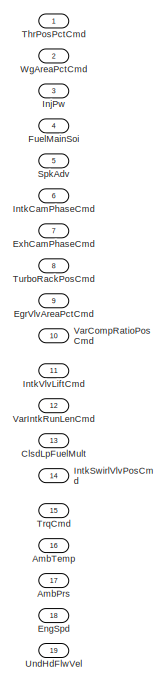
[diagram: Passenger Car/Engine - part 1/3, top left region]
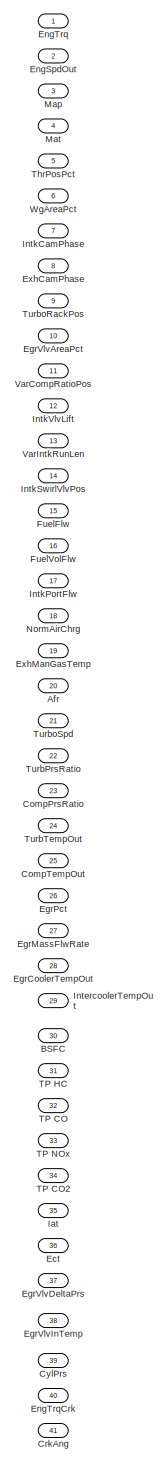
[diagram: Passenger Car/Engine - part 2/3, right side, full height]
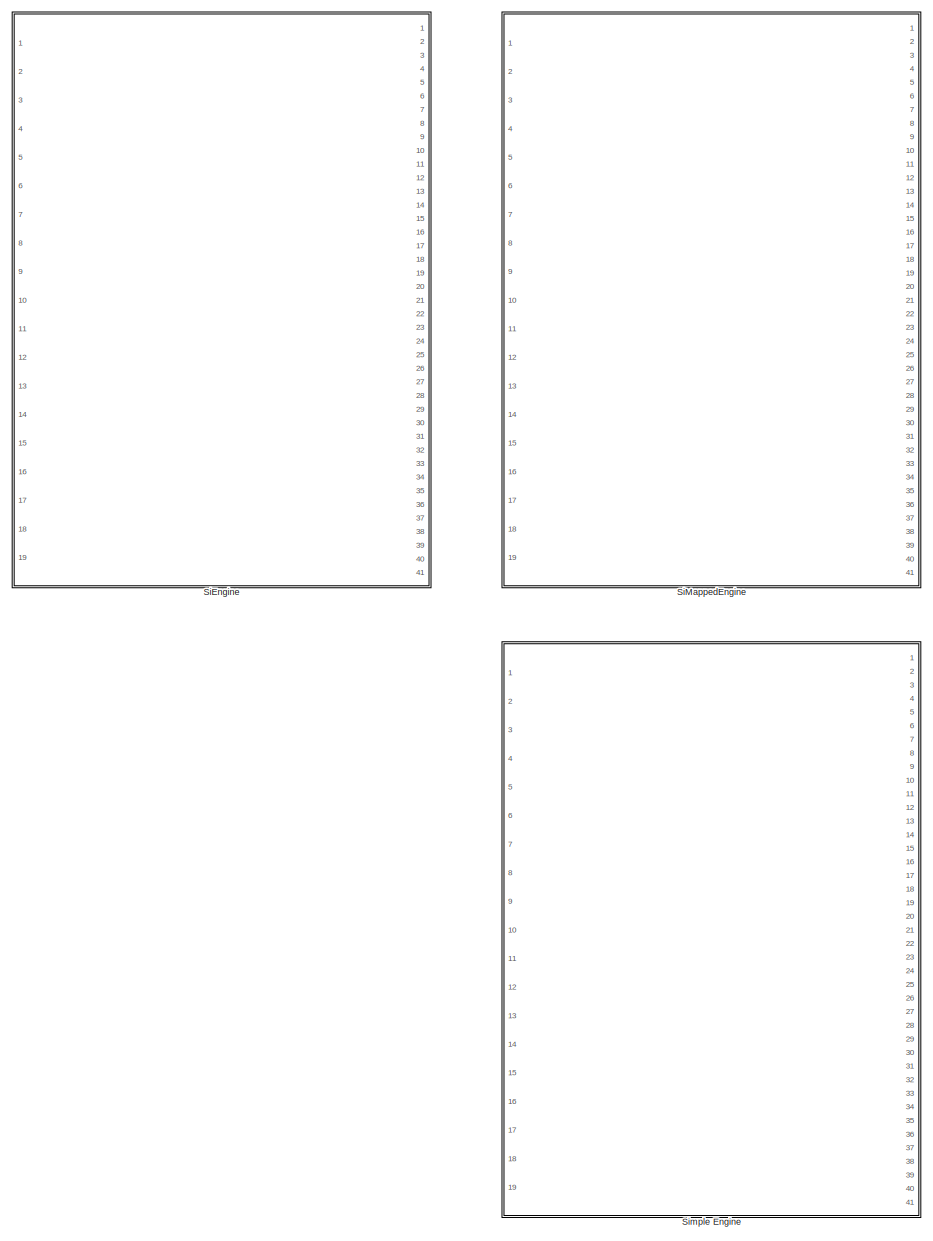
[diagram: Passenger Car/Engine - part 3/3, center side, full height]
BLOCK [SubSystem] Passenger Car/Engine
  LabelModeActiveChoice = SiMappedEngine
  Ports = [19, 41]
  RequestExecContextInheritance = off
  Variant = on
  VariantControlMode = label
BLOCK [SubSystem] Passenger Car/Engine Plant Input
  Ports = [4, 19]
  RequestExecContextInheritance = off
BLOCK [Outport] Passenger Car/Engine Plant Input/AmbPrs
  Port = 17
  VectorParamsAs1DForOutWhenUnconnected = off
BLOCK [Outport] Passenger Car/Engine Plant Input/AmbTemp
  Port = 16
  VectorParamsAs1DForOutWhenUnconnected = off
BLOCK [BusSelector] Passenger Car/Engine Plant Input/Bus Selector
  OutputSignals = EngCtrl.ThrPosPctCmd,EngCtrl.WgAreaPctCmd,EngCtrl.InjPw,EngCtrl.FuelMainSoi,EngCtrl.SpkAdv,EngCtrl.IntkCamPhaseCmd,EngCtrl.ExhCamPhaseCmd,EngCtrl.TurboRackPosCmd,EngCtrl.EgrVlvAreaPctCmd,EngCtrl.VarCompRatioPosCmd,EngCtrl.IntkVlvLiftCmd,EngCtrl.VarIntkRunLenCmd,EngCtrl.ClsdLpFuelMult,EngCtrl.IntkSwirlVlvPosCmd,EngCtrl.TrqCmdISC
  Ports = [1, 15]
BLOCK [BusSelector] Passenger Car/Engine Plant Input/Bus Selector1
  OutputSignals = Temp,Baro
  Ports = [1, 2]
BLOCK [BusSelector] Passenger Car/Engine Plant Input/Bus Selector2
  OutputSignals = EngSpd
  Ports = [1, 1]
BLOCK [BusSelector] Passenger Car/Engine Plant Input/Bus Selector3
  OutputSignals = xdot
  Ports = [1, 1]
BLOCK [Outport] Passenger Car/Engine Plant Input/ClsdLpFuelMult
  Port = 13
  VectorParamsAs1DForOutWhenUnconnected = off
BLOCK [Inport] Passenger Car/Engine Plant Input/Ctrl
BLOCK [Outport] Passenger Car/Engine Plant Input/EgrVlvAreaPctCmd
  Port = 9
  VectorParamsAs1DForOutWhenUnconnected = off
BLOCK [Outport] Passenger Car/Engine Plant Input/EngSpd
  Port = 18
  VectorParamsAs1DForOutWhenUnconnected = off
BLOCK [Inport] Passenger Car/Engine Plant Input/Env
  Port = 2
BLOCK [Outport] Passenger Car/Engine Plant Input/ExhCamPhaseCmd
  Port = 7
  VectorParamsAs1DForOutWhenUnconnected = off
BLOCK [FirstOrderHold] Passenger Car/Engine Plant Input/First Order Hold
  ErrorTolerance = 10e6
BLOCK [FirstOrderHold] Passenger Car/Engine Plant Input/First Order Hold1
  ErrorTolerance = 10e6
BLOCK [FirstOrderHold] Passenger Car/Engine Plant Input/First Order Hold10
  AllowContinuousInput = on
  ErrorTolerance = 10e6
BLOCK [FirstOrderHold] Passenger Car/Engine Plant Input/First Order Hold11
  AllowContinuousInput = on
  ErrorTolerance = 10e6
BLOCK [FirstOrderHold] Passenger Car/Engine Plant Input/First Order Hold12
  AllowContinuousInput = on
  ErrorTolerance = 10e6
BLOCK [FirstOrderHold] Passenger Car/Engine Plant Input/First Order Hold13
  AllowContinuousInput = on
  ErrorTolerance = 10e6
BLOCK [FirstOrderHold] Passenger Car/Engine Plant Input/First Order Hold14
  AllowContinuousInput = on
  ErrorTolerance = 10e6
BLOCK [FirstOrderHold] Passenger Car/Engine Plant Input/First Order Hold2
  ErrorTolerance = 10e6
BLOCK [FirstOrderHold] Passenger Car/Engine Plant Input/First Order Hold3
  AllowContinuousInput = on
  ErrorTolerance = 10e6
BLOCK [FirstOrderHold] Passenger Car/Engine Plant Input/First Order Hold4
  AllowContinuousInput = on
  ErrorTolerance = 10e6
BLOCK [FirstOrderHold] Passenger Car/Engine Plant Input/First Order Hold5
  AllowContinuousInput = on
  ErrorTolerance = 10e6
BLOCK [FirstOrderHold] Passenger Car/Engine Plant Input/First Order Hold6
  AllowContinuousInput = on
  ErrorTolerance = 10e6
BLOCK [FirstOrderHold] Passenger Car/Engine Plant Input/First Order Hold7
  AllowContinuousInput = on
  ErrorTolerance = 10e6
BLOCK [FirstOrderHold] Passenger Car/Engine Plant Input/First Order Hold8
  AllowContinuousInput = on
  ErrorTolerance = 10e6
BLOCK [FirstOrderHold] Passenger Car/Engine Plant Input/First Order Hold9
  AllowContinuousInput = on
  ErrorTolerance = 10e6
BLOCK [Outport] Passenger Car/Engine Plant Input/FuelMainSoi
  Port = 4
  VectorParamsAs1DForOutWhenUnconnected = off
BLOCK [Outport] Passenger Car/Engine Plant Input/InjPw
  Port = 3
  VectorParamsAs1DForOutWhenUnconnected = off
BLOCK [Outport] Passenger Car/Engine Plant Input/IntkCamPhaseCmd
  Port = 6
  VectorParamsAs1DForOutWhenUnconnected = off
BLOCK [Outport] Passenger Car/Engine Plant Input/IntkSwirlVlvPosCmd
  Port = 14
  VectorParamsAs1DForOutWhenUnconnected = off
BLOCK [Outport] Passenger Car/Engine Plant Input/IntkVlvLiftCmd
  Port = 11
  VectorParamsAs1DForOutWhenUnconnected = off
BLOCK [TransferFcn] Passenger Car/Engine Plant Input/Sensor Dynamics
  Commented = through
  Denominator = [0.01 1]
BLOCK [SignalSpecification] Passenger Car/Engine Plant Input/Signal Specification
  Unit = rad/s
BLOCK [Outport] Passenger Car/Engine Plant Input/SpkAdv
  Port = 5
  VectorParamsAs1DForOutWhenUnconnected = off
BLOCK [Outport] Passenger Car/Engine Plant Input/ThrPosPctCmd
  VectorParamsAs1DForOutWhenUnconnected = off
BLOCK [Inport] Passenger Car/Engine Plant Input/TransFdbk
  Port = 3
BLOCK [Outport] Passenger Car/Engine Plant Input/TrqCmd
  Port = 15
  VectorParamsAs1DForOutWhenUnconnected = off
BLOCK [Outport] Passenger Car/Engine Plant Input/TurboRackPosCmd
  Port = 8
  VectorParamsAs1DForOutWhenUnconnected = off
BLOCK [UnitConversion] Passenger Car/Engine Plant Input/Unit Conversion
BLOCK [UnitConversion] Passenger Car/Engine Plant Input/Unit Conversion1
BLOCK [UnitConversion] Passenger Car/Engine Plant Input/Unit Conversion10
BLOCK [UnitConversion] Passenger Car/Engine Plant Input/Unit Conversion11
BLOCK [UnitConversion] Passenger Car/Engine Plant Input/Unit Conversion12
BLOCK [UnitConversion] Passenger Car/Engine Plant Input/Unit Conversion13
BLOCK [UnitConversion] Passenger Car/Engine Plant Input/Unit Conversion14
BLOCK [UnitConversion] Passenger Car/Engine Plant Input/Unit Conversion15
BLOCK [UnitConversion] Passenger Car/Engine Plant Input/Unit Conversion2
BLOCK [UnitConversion] Passenger Car/Engine Plant Input/Unit Conversion3
BLOCK [UnitConversion] Passenger Car/Engine Plant Input/Unit Conversion4
BLOCK [UnitConversion] Passenger Car/Engine Plant Input/Unit Conversion5
BLOCK [UnitConversion] Passenger Car/Engine Plant Input/Unit Conversion6
BLOCK [UnitConversion] Passenger Car/Engine Plant Input/Unit Conversion7
BLOCK [UnitConversion] Passenger Car/Engine Plant Input/Unit Conversion8
BLOCK [UnitConversion] Passenger Car/Engine Plant Input/Unit Conversion9
BLOCK [Outport] Passenger Car/Engine Plant Input/VarCompRatioPosCmd
  Port = 10
  VectorParamsAs1DForOutWhenUnconnected = off
BLOCK [Outport] Passenger Car/Engine Plant Input/VarIntkRunLenCmd
  Port = 12
  VectorParamsAs1DForOutWhenUnconnected = off
BLOCK [Inport] Passenger Car/Engine Plant Input/VehFdbk
  Port = 4
BLOCK [Outport] Passenger Car/Engine Plant Input/VehSpd
  Port = 19
  VectorParamsAs1DForOutWhenUnconnected = off
BLOCK [Outport] Passenger Car/Engine Plant Input/WgAreaPctCmd
  Port = 2
  VectorParamsAs1DForOutWhenUnconnected = off
BLOCK [SubSystem] Passenger Car/Engine Plant Output
  Ports = [41, 1]
  RequestExecContextInheritance = off
BLOCK [Inport] Passenger Car/Engine Plant Output/Afr
  Port = 20
BLOCK [Inport] Passenger Car/Engine Plant Output/BSFC
  Port = 30
BLOCK [BusCreator] Passenger Car/Engine Plant Output/Bus Creator1
  DisplayOption = bar
  InheritFromInputs = on
  Inputs = 41
  Ports = [41, 1]
BLOCK [Inport] Passenger Car/Engine Plant Output/CompPrsRatio
  Port = 23
BLOCK [Inport] Passenger Car/Engine Plant Output/CompTempOut
  Port = 25
BLOCK [Inport] Passenger Car/Engine Plant Output/CrkAng
  Port = 41
BLOCK [Inport] Passenger Car/Engine Plant Output/CylPrs
  Port = 39
BLOCK [Inport] Passenger Car/Engine Plant Output/Ect
  Port = 36
BLOCK [Inport] Passenger Car/Engine Plant Output/EgrCoolerTempOut
  Port = 28
BLOCK [Inport] Passenger Car/Engine Plant Output/EgrMassFlwRate
  Port = 27
BLOCK [Inport] Passenger Car/Engine Plant Output/EgrPct
  Port = 26
BLOCK [Inport] Passenger Car/Engine Plant Output/EgrVlvAreaPct
  Port = 10
BLOCK [Inport] Passenger Car/Engine Plant Output/EgrVlvDeltaPrs
  Port = 37
BLOCK [Inport] Passenger Car/Engine Plant Output/EgrVlvInTemp
  Port = 38
BLOCK [Outport] Passenger Car/Engine Plant Output/EngFdbkOut
  VectorParamsAs1DForOutWhenUnconnected = off
BLOCK [Inport] Passenger Car/Engine Plant Output/EngSpd
  Port = 2
BLOCK [Inport] Passenger Car/Engine Plant Output/EngTrq
BLOCK [Inport] Passenger Car/Engine Plant Output/EngTrqCrk
  Port = 40
BLOCK [Inport] Passenger Car/Engine Plant Output/ExhCamPhase
  Port = 8
BLOCK [Inport] Passenger Car/Engine Plant Output/ExhManGasTemp
  Port = 19
BLOCK [Inport] Passenger Car/Engine Plant Output/FuelFlw
  Port = 15
BLOCK [Inport] Passenger Car/Engine Plant Output/FuelVolFlw
  Port = 16
BLOCK [Inport] Passenger Car/Engine Plant Output/Iat
  Port = 35
BLOCK [Inport] Passenger Car/Engine Plant Output/IntercoolerTempOut
  Port = 29
BLOCK [Inport] Passenger Car/Engine Plant Output/IntkCamPhase
  Port = 7
BLOCK [Inport] Passenger Car/Engine Plant Output/IntkPortFlow
  Port = 17
BLOCK [Inport] Passenger Car/Engine Plant Output/IntkSwirlVlvPos
  Port = 14
BLOCK [Inport] Passenger Car/Engine Plant Output/IntkVlvLift
  Port = 12
BLOCK [Inport] Passenger Car/Engine Plant Output/Map
  Port = 3
BLOCK [Inport] Passenger Car/Engine Plant Output/Mat
  Port = 4
BLOCK [Inport] Passenger Car/Engine Plant Output/NormAirChrg
  Port = 18
BLOCK [Inport] Passenger Car/Engine Plant Output/TP CO
  Port = 32
BLOCK [Inport] Passenger Car/Engine Plant Output/TP CO2
  Port = 34
BLOCK [Inport] Passenger Car/Engine Plant Output/TP HC
  Port = 31
BLOCK [Inport] Passenger Car/Engine Plant Output/TP NOx
  Port = 33
BLOCK [Inport] Passenger Car/Engine Plant Output/ThrPosPct
  Port = 5
BLOCK [Inport] Passenger Car/Engine Plant Output/TurbPrsRatio
  Port = 22
BLOCK [Inport] Passenger Car/Engine Plant Output/TurbTempOut
  Port = 24
BLOCK [Inport] Passenger Car/Engine Plant Output/TurboRackPos
  Port = 9
BLOCK [Inport] Passenger Car/Engine Plant Output/TurboSpd
  Port = 21
BLOCK [Inport] Passenger Car/Engine Plant Output/VarCompRatioPos
  Port = 11
BLOCK [Inport] Passenger Car/Engine Plant Output/VarIntkRunLen
  Port = 13
BLOCK [Inport] Passenger Car/Engine Plant Output/WgAreaPct
  Port = 6
BLOCK [Outport] Passenger Car/Engine/Afr
  Port = 20
  VectorParamsAs1DForOutWhenUnconnected = off
BLOCK [Inport] Passenger Car/Engine/AmbPrs
  Port = 17
BLOCK [Inport] Passenger Car/Engine/AmbTemp
  Port = 16
BLOCK [Outport] Passenger Car/Engine/BSFC
  Port = 30
  VectorParamsAs1DForOutWhenUnconnected = off
BLOCK [Inport] Passenger Car/Engine/ClsdLpFuelMult
  Port = 13
BLOCK [Outport] Passenger Car/Engine/CompPrsRatio
  Port = 23
  VectorParamsAs1DForOutWhenUnconnected = off
BLOCK [Outport] Passenger Car/Engine/CompTempOut
  Port = 25
  VectorParamsAs1DForOutWhenUnconnected = off
BLOCK [Outport] Passenger Car/Engine/CrkAng
  Port = 41
  VectorParamsAs1DForOutWhenUnconnected = off
BLOCK [Outport] Passenger Car/Engine/CylPrs
  Port = 39
  VectorParamsAs1DForOutWhenUnconnected = off
BLOCK [Outport] Passenger Car/Engine/Ect
  Port = 36
  VectorParamsAs1DForOutWhenUnconnected = off
BLOCK [Outport] Passenger Car/Engine/EgrCoolerTempOut
  Port = 28
  VectorParamsAs1DForOutWhenUnconnected = off
BLOCK [Outport] Passenger Car/Engine/EgrMassFlwRate
  Port = 27
  VectorParamsAs1DForOutWhenUnconnected = off
BLOCK [Outport] Passenger Car/Engine/EgrPct
  Port = 26
  VectorParamsAs1DForOutWhenUnconnected = off
BLOCK [Outport] Passenger Car/Engine/EgrVlvAreaPct
  Port = 10
  VectorParamsAs1DForOutWhenUnconnected = off
BLOCK [Inport] Passenger Car/Engine/EgrVlvAreaPctCmd
  Port = 9
BLOCK [Outport] Passenger Car/Engine/EgrVlvDeltaPrs
  Port = 37
  VectorParamsAs1DForOutWhenUnconnected = off
BLOCK [Outport] Passenger Car/Engine/EgrVlvInTemp
  Port = 38
  VectorParamsAs1DForOutWhenUnconnected = off
BLOCK [Inport] Passenger Car/Engine/EngSpd
  Port = 18
BLOCK [Outport] Passenger Car/Engine/EngSpdOut
  Port = 2
  VectorParamsAs1DForOutWhenUnconnected = off
BLOCK [Outport] Passenger Car/Engine/EngTrq
  VectorParamsAs1DForOutWhenUnconnected = off
BLOCK [Outport] Passenger Car/Engine/EngTrqCrk
  Port = 40
  VectorParamsAs1DForOutWhenUnconnected = off
BLOCK [Outport] Passenger Car/Engine/ExhCamPhase
  Port = 8
  VectorParamsAs1DForOutWhenUnconnected = off
BLOCK [Inport] Passenger Car/Engine/ExhCamPhaseCmd
  Port = 7
BLOCK [Outport] Passenger Car/Engine/ExhManGasTemp
  Port = 19
  VectorParamsAs1DForOutWhenUnconnected = off
BLOCK [Outport] Passenger Car/Engine/FuelFlw
  Port = 15
  VectorParamsAs1DForOutWhenUnconnected = off
BLOCK [Inport] Passenger Car/Engine/FuelMainSoi
  Port = 4
BLOCK [Outport] Passenger Car/Engine/FuelVolFlw
  Port = 16
  VectorParamsAs1DForOutWhenUnconnected = off
BLOCK [Outport] Passenger Car/Engine/Iat
  Port = 35
  VectorParamsAs1DForOutWhenUnconnected = off
BLOCK [Inport] Passenger Car/Engine/InjPw
  Port = 3
BLOCK [Outport] Passenger Car/Engine/IntercoolerTempOut
  Port = 29
  VectorParamsAs1DForOutWhenUnconnected = off
BLOCK [Outport] Passenger Car/Engine/IntkCamPhase
  Port = 7
  VectorParamsAs1DForOutWhenUnconnected = off
BLOCK [Inport] Passenger Car/Engine/IntkCamPhaseCmd
  Port = 6
BLOCK [Outport] Passenger Car/Engine/IntkPortFlw
  Port = 17
  VectorParamsAs1DForOutWhenUnconnected = off
BLOCK [Outport] Passenger Car/Engine/IntkSwirlVlvPos
  Port = 14
  VectorParamsAs1DForOutWhenUnconnected = off
BLOCK [Inport] Passenger Car/Engine/IntkSwirlVlvPosCmd
  Port = 14
BLOCK [Outport] Passenger Car/Engine/IntkVlvLift
  Port = 12
  VectorParamsAs1DForOutWhenUnconnected = off
BLOCK [Inport] Passenger Car/Engine/IntkVlvLiftCmd
  Port = 11
BLOCK [Outport] Passenger Car/Engine/Map
  Port = 3
  VectorParamsAs1DForOutWhenUnconnected = off
BLOCK [Outport] Passenger Car/Engine/Mat
  Port = 4
  VectorParamsAs1DForOutWhenUnconnected = off
BLOCK [Outport] Passenger Car/Engine/NormAirChrg
  Port = 18
  VectorParamsAs1DForOutWhenUnconnected = off
BLOCK [ModelReference] Passenger Car/Engine/SiEngine
  ModelNameDialog = SiEnginePx.slx
  ModelReferenceVersion = 4.3
  Ports = [19, 41]
  VariantControl = SiEngine
BLOCK [ModelReference] Passenger Car/Engine/SiMappedEngine
  ModelNameDialog = SiMappedEngine.slx
  ModelReferenceVersion = 4.1
  Ports = [19, 41]
  VariantControl = SiMappedEngine
BLOCK [ModelReference] Passenger Car/Engine/Simple Engine
  ModelNameDialog = SimpleEngine.slx
  ModelReferenceVersion = 4.1
  Ports = [19, 41]
  VariantControl = Simple Engine
BLOCK [Inport] Passenger Car/Engine/SpkAdv
  Port = 5
BLOCK [Outport] Passenger Car/Engine/TP CO
  Port = 32
  VectorParamsAs1DForOutWhenUnconnected = off
BLOCK [Outport] Passenger Car/Engine/TP CO2
  Port = 34
  VectorParamsAs1DForOutWhenUnconnected = off
BLOCK [Outport] Passenger Car/Engine/TP HC
  Port = 31
  VectorParamsAs1DForOutWhenUnconnected = off
BLOCK [Outport] Passenger Car/Engine/TP NOx
  Port = 33
  VectorParamsAs1DForOutWhenUnconnected = off
BLOCK [Outport] Passenger Car/Engine/ThrPosPct
  Port = 5
  VectorParamsAs1DForOutWhenUnconnected = off
BLOCK [Inport] Passenger Car/Engine/ThrPosPctCmd
BLOCK [Inport] Passenger Car/Engine/TrqCmd
  Port = 15
BLOCK [Outport] Passenger Car/Engine/TurbPrsRatio
  Port = 22
  VectorParamsAs1DForOutWhenUnconnected = off
BLOCK [Outport] Passenger Car/Engine/TurbTempOut
  Port = 24
  VectorParamsAs1DForOutWhenUnconnected = off
BLOCK [Outport] Passenger Car/Engine/TurboRackPos
  Port = 9
  VectorParamsAs1DForOutWhenUnconnected = off
BLOCK [Inport] Passenger Car/Engine/TurboRackPosCmd
  Port = 8
BLOCK [Outport] Passenger Car/Engine/TurboSpd
  Port = 21
  VectorParamsAs1DForOutWhenUnconnected = off
BLOCK [Inport] Passenger Car/Engine/UndHdFlwVel
  Port = 19
BLOCK [Outport] Passenger Car/Engine/VarCompRatioPos
  Port = 11
  VectorParamsAs1DForOutWhenUnconnected = off
BLOCK [Inport] Passenger Car/Engine/VarCompRatioPosCmd
  Port = 10
BLOCK [Outport] Passenger Car/Engine/VarIntkRunLen
  Port = 13
  VectorParamsAs1DForOutWhenUnconnected = off
BLOCK [Inport] Passenger Car/Engine/VarIntkRunLenCmd
  Port = 12
BLOCK [Outport] Passenger Car/Engine/WgAreaPct
  Port = 6
  VectorParamsAs1DForOutWhenUnconnected = off
BLOCK [Inport] Passenger Car/Engine/WgAreaPctCmd
  Port = 2
BLOCK [Inport] Passenger Car/Env
BLOCK [From] Passenger Car/From
  GotoTag = ElecFdbk
BLOCK [From] Passenger Car/From1
  GotoTag = Ctrl
BLOCK [From] Passenger Car/From10
  GotoTag = VehFdbk
BLOCK [From] Passenger Car/From11
  GotoTag = Ctrl
BLOCK [From] Passenger Car/From12
  GotoTag = VehFdbk
BLOCK [From] Passenger Car/From13
  GotoTag = Env
BLOCK [From] Passenger Car/From14
  GotoTag = Env
BLOCK [From] Passenger Car/From15
  GotoTag = EngFdbkIn
BLOCK [From] Passenger Car/From2
  GotoTag = EngFdbkIn
BLOCK [From] Passenger Car/From3
  GotoTag = Env
BLOCK [From] Passenger Car/From4
  GotoTag = Ctrl
BLOCK [From] Passenger Car/From5
  GotoTag = ElecFdbk
BLOCK [From] Passenger Car/From6
  GotoTag = VehFdbk
BLOCK [From] Passenger Car/From7
  GotoTag = EngFdbkIn
BLOCK [From] Passenger Car/From8
  GotoTag = EngFdbkOut
BLOCK [From] Passenger Car/From9
  GotoTag = EngFdbkOut
BLOCK [Goto] Passenger Car/Goto1
  GotoTag = Ctrl
BLOCK [Goto] Passenger Car/Goto2
  GotoTag = Env
BLOCK [Goto] Passenger Car/Goto3
  GotoTag = VehFdbk
BLOCK [Goto] Passenger Car/Goto4
  GotoTag = ElecFdbk
BLOCK [Goto] Passenger Car/Goto5
  GotoTag = EngFdbkIn
BLOCK [Goto] Passenger Car/Goto6
  GotoTag = EngFdbkOut
BLOCK [Outport] Passenger Car/VehPlnt
  VectorParamsAs1DForOutWhenUnconnected = off
BLOCK [SubSystem] Subsystem4
  OpenFcn = helpview([docroot,'/toolbox/autoblks/helptargets.map'], 'p2_hybrid_refapp')
  Ports = []
  RequestExecContextInheritance = off
BLOCK [SubSystem] Toggle Drivetrain
  OpenFcn = open_system(gcb,'Mask')
  Ports = []
  RequestExecContextInheritance = off
BLOCK [SubSystem] Visualization
  Ports = [2]
  RequestExecContextInheritance = off
BLOCK [BusSelector] Visualization/Bus Selector1
  OutputSignals = Veh.xdot,Eng.EngFdbkOut.EngSpd,Veh.MotSpd,Eng.EngFdbkOut.EngTrq,Elec.MotTrq,Elec.BattCrnt,Elec.BattSoc,Eng.EngFdbkOut.Afr,Eng.EngFdbkOut.FuelVolFlw,Elec.BattPwr,Eng.EngFdbkOut.TP HC,Eng.EngFdbkOut.TP CO,Eng.EngFdbkOut.TP NOx,Eng.EngFdbkOut.TP CO2
  Ports = [1, 14]
BLOCK [SubSystem] Visualization/Emission Calculations
  Ports = [5, 4]
  RequestExecContextInheritance = off
BLOCK [Integrator] Visualization/Emission Calculations/Integrator
  Ports = [1, 1]
BLOCK [Integrator] Visualization/Emission Calculations/Integrator1
  Ports = [1, 1]
BLOCK [Integrator] Visualization/Emission Calculations/Integrator2
  Ports = [1, 1]
BLOCK [Integrator] Visualization/Emission Calculations/Integrator3
  Ports = [1, 1]
BLOCK [Integrator] Visualization/Emission Calculations/Integrator4
  Ports = [1, 1]
BLOCK [Gain] Visualization/Emission Calculations/Kg to g
  Gain = 1000
BLOCK [Gain] Visualization/Emission Calculations/Kg to g 
  Gain = 1000
BLOCK [Gain] Visualization/Emission Calculations/Kg to g  
  Gain = 1000
BLOCK [Gain] Visualization/Emission Calculations/Kg to g   
  Gain = 1000
BLOCK [Product] Visualization/Emission Calculations/L//100 Km Calc
  Inputs = /*
  Ports = [2, 1]
BLOCK [Product] Visualization/Emission Calculations/L//100 Km Calc1
  Inputs = /*
  Ports = [2, 1]
BLOCK [Product] Visualization/Emission Calculations/L//100 Km Calc2
  Inputs = /*
  Ports = [2, 1]
BLOCK [Product] Visualization/Emission Calculations/L//100 Km Calc3
  Inputs = /*
  Ports = [2, 1]
BLOCK [RateTransition] Visualization/Emission Calculations/Rate Transition
  Deterministic = off
BLOCK [RateTransition] Visualization/Emission Calculations/Rate Transition1
  Deterministic = off
BLOCK [RateTransition] Visualization/Emission Calculations/Rate Transition2
  Deterministic = off
BLOCK [RateTransition] Visualization/Emission Calculations/Rate Transition3
  Deterministic = off
BLOCK [Saturate] Visualization/Emission Calculations/Saturation
  LowerLimit = 0.2
  UpperLimit = Inf
BLOCK [Saturate] Visualization/Emission Calculations/Saturation1
  LowerLimit = 1
  UpperLimit = Inf
BLOCK [Outport] Visualization/Emission Calculations/TP CO Mass
  Port = 2
  VectorParamsAs1DForOutWhenUnconnected = off
BLOCK [Inport] Visualization/Emission Calculations/TP CO Mass Flow
  Port = 3
BLOCK [Outport] Visualization/Emission Calculations/TP CO2 Mass
  Port = 4
  VectorParamsAs1DForOutWhenUnconnected = off
BLOCK [Inport] Visualization/Emission Calculations/TP CO2 Mass Flow
  Port = 5
BLOCK [Outport] Visualization/Emission Calculations/TP HC Mass
  VectorParamsAs1DForOutWhenUnconnected = off
BLOCK [Inport] Visualization/Emission Calculations/TP HC Mass Flow
  Port = 2
BLOCK [Outport] Visualization/Emission Calculations/TP NOx Mass
  Port = 3
  VectorParamsAs1DForOutWhenUnconnected = off
BLOCK [Inport] Visualization/Emission Calculations/TP NOx Mass Flow
  Port = 4
BLOCK [Inport] Visualization/Emission Calculations/VehSpd
BLOCK [Gain] Visualization/Emission Calculations/m to km
  Gain = 0.001
BLOCK [Gain] Visualization/Emission Calculations/m to mi
  Gain = 0.000621371
BLOCK [Mux] Visualization/Mux
  DisplayOption = bar
  Inputs = 2
  Ports = [2, 1]
BLOCK [Mux] Visualization/Mux1
  DisplayOption = bar
  Inputs = 2
  Ports = [2, 1]
BLOCK [Mux] Visualization/Mux2
  DisplayOption = bar
  Inputs = 2
  Ports = [2, 1]
BLOCK [SubSystem] Visualization/Performance Calculations
  Ports = [3, 2]
  RequestExecContextInheritance = off
BLOCK [Sum] Visualization/Performance Calculations/Add
  IconShape = rectangular
  Ports = [2, 1]
BLOCK [Inport] Visualization/Performance Calculations/BattPwr
  Port = 3
BLOCK [Product] Visualization/Performance Calculations/Divide
  Inputs = */
  Ports = [2, 1]
BLOCK [Product] Visualization/Performance Calculations/Divide1
  Inputs = */
  Ports = [2, 1]
BLOCK [Product] Visualization/Performance Calculations/Divide2
  Inputs = */
  Ports = [2, 1]
BLOCK [Inport] Visualization/Performance Calculations/FuelVolFlow
  Port = 2
BLOCK [Integrator] Visualization/Performance Calculations/Integrator
  Ports = [1, 1]
BLOCK [Integrator] Visualization/Performance Calculations/Integrator1
  Ports = [1, 1]
BLOCK [Product] Visualization/Performance Calculations/L//100 Km Calc
  Inputs = /*
  Ports = [2, 1]
BLOCK [Outport] Visualization/Performance Calculations/L//100Km
  Port = 2
  VectorParamsAs1DForOutWhenUnconnected = off
BLOCK [Product] Visualization/Performance Calculations/Product
  Ports = [2, 1]
BLOCK [RateTransition] Visualization/Performance Calculations/Rate Transition3
  Deterministic = off
BLOCK [Saturate] Visualization/Performance Calculations/Saturation
  LowerLimit = 0.001
  UpperLimit = Inf
BLOCK [Saturate] Visualization/Performance Calculations/Saturation1
  LowerLimit = 1e-3
  UpperLimit = Inf
BLOCK [Sqrt] Visualization/Performance Calculations/Sqrt
BLOCK [Constant] Visualization/Performance Calculations/US EPA kwh//USgal equivalent
  Value = 33.7
BLOCK [Outport] Visualization/Performance Calculations/US MPG
  VectorParamsAs1DForOutWhenUnconnected = off
BLOCK [Product] Visualization/Performance Calculations/US MPG Calc
  Inputs = */
  Ports = [2, 1]
BLOCK [Inport] Visualization/Performance Calculations/VehSpd
BLOCK [Gain] Visualization/Performance Calculations/m to 100Km
  Gain = 1/1000/100
BLOCK [Gain] Visualization/Performance Calculations/m to mile
  Gain = 0.000621371
BLOCK [Gain] Visualization/Performance Calculations/m^3 per gal
  Gain = 0.00378541
BLOCK [Gain] Visualization/Performance Calculations/m^3 to L
  Gain = 1000
BLOCK [Gain] Visualization/Performance Calculations/m^3 to US Gal
  Gain = 264.172
BLOCK [Constant] Visualization/Performance Calculations/s per h
  Value = 3600
BLOCK [Constant] Visualization/Performance Calculations/w per kw
  Value = 1000
BLOCK [Scope] Visualization/Performance and FE Scope
  Floating = off
  NumInputPorts = 6
  Ports = [6]
  ScopeSpecificationString = Simulink.scopes.TimeScopeBlockCfg('CurrentConfiguration', extmgr.ConfigurationSet(extmgr.Configuration('Core','General UI',true),extmgr.Configuration('Core','Source UI',true),extmgr.Configuration('Sources','WiredSimulink',true,'SampleTime','0.1'),extmgr.Configuration('Visuals','Time Domain',true,'SerializedDisplays',{struct('MinYLimReal','-7.08751','MaxYLimReal','63.78761','YLabelReal','','MinYLim...<+5008ch>
BLOCK [RateTransition] Visualization/Rate Transition1
  Deterministic = off
BLOCK [RateTransition] Visualization/Rate Transition10
  Deterministic = off
BLOCK [RateTransition] Visualization/Rate Transition2
  Deterministic = off
BLOCK [RateTransition] Visualization/Rate Transition4
  Deterministic = off
BLOCK [RateTransition] Visualization/Rate Transition5
  Deterministic = off
BLOCK [RateTransition] Visualization/Rate Transition7
  Deterministic = off
BLOCK [RateTransition] Visualization/Rate Transition8
  Deterministic = off
BLOCK [Scope] Visualization/TP Emissions Scope
  Floating = off
  NumInputPorts = 4
  Ports = [4]
  ScopeSpecificationString = Simulink.scopes.TimeScopeBlockCfg('CurrentConfiguration', extmgr.ConfigurationSet(extmgr.Configuration('Core','General UI',true),extmgr.Configuration('Core','Source UI',true),extmgr.Configuration('Sources','WiredSimulink',true,'DataLoggingVariableName','ScopeData1','SampleTime','0.1'),extmgr.Configuration('Visuals','Time Domain',true,'SerializedDisplays',{struct('MinYLimReal','-0.1021','MaxYLimRea...<+3443ch>
BLOCK [Terminator] Visualization/Terminator
BLOCK [Terminator] Visualization/Terminator1
BLOCK [Inport] Visualization/Veh Bus
BLOCK [Inport] Visualization/VelocityRef
  Port = 2
BLOCK [Gain] Visualization/m//s to mph
  Gain = 2.23694
BLOCK [Gain] Visualization/rad//s to rpm
  Gain = 30/pi
ANNOTATION (root): <copyright redacted>
ANNOTATION Longitudinal Driver: To switch variants, right-click on this subsystem (from one level above) and chose: Variant, Active choice,
ANNOTATION Longitudinal Driver/Longitudinal Driver/Optional Stationary Charging: Setup for FTP75, allow charging between 1490-1860 secs when vehicle is stopped
ANNOTATION Longitudinal Driver/Open Loop: This subsystem is provided to disable the driver subsystem and expose the driver interface. The interface can: - be connected with dashboard UI blocks or 3rd party hardware - provide application specific pre-programmed event or time based signals - be driven by recorded operator signals for tuning, troubleshooting and model validation
ANNOTATION Longitudinal Driver/Open Loop/Optional Stationary Charging: Setup for FTP75, allow charging between 1490-1860 secs when vehicle is stopped
ANNOTATION Passenger Car/Drivetrain: 1) Add Subsystem or Model blocks as valid variant choices. 2) You cannot connect blocks at this level. At simulation, connectivity is automatically determined, based on the active variant and port name matching.
LINE Controllers/Bus Creator:1 -> Controllers/Ctrl:1
LINE Controllers/Env:1 -> Controllers/Goto7:1
LINE Controllers/From10:1 -> Controllers/PCM Input:2
LINE Controllers/From11:1 -> Controllers/PCM Input:3
LINE Controllers/From1:1 -> Controllers/Bus Creator:1
LINE Controllers/From2:1 -> Controllers/Bus Creator:2
LINE Controllers/From3:1 -> Controllers/PCM Input:1
LINE Controllers/From9:1 -> Controllers/PCM Input:4
LINE Controllers/OpCmds:1 -> Controllers/Goto1:1
LINE Controllers/PCM Input/Bus Selector1:1 -> Controllers/PCM Input/Rate Transition:1
LINE Controllers/PCM Input/Bus Selector2:1 -> Controllers/PCM Input/Rate Transition26:1
LINE Controllers/PCM Input/Bus Selector2:2 -> Controllers/PCM Input/Rate Transition27:1
LINE Controllers/PCM Input/Bus Selector2:3 -> Controllers/PCM Input/Ending SOC Tuning:1
LINE Controllers/PCM Input/Bus Selector2:4 -> Controllers/PCM Input/Rate Transition29:1
LINE Controllers/PCM Input/Bus Selector2:5 -> Controllers/PCM Input/Rate Transition30:1
LINE Controllers/PCM Input/Bus Selector2:6 -> Controllers/PCM Input/Rate Transition31:1
LINE Controllers/PCM Input/Bus Selector2:7 -> Controllers/PCM Input/Rate Transition32:1
LINE Controllers/PCM Input/Bus Selector2:8 -> Controllers/PCM Input/Rate Transition33:1
LINE Controllers/PCM Input/Bus Selector2:9 -> Controllers/PCM Input/Rate Transition34:1
LINE Controllers/PCM Input/Bus Selector3:1 -> Controllers/PCM Input/Rate Transition1:1
LINE Controllers/PCM Input/Bus Selector4:1 -> Controllers/PCM Input/Unit Conversion:1
LINE Controllers/PCM Input/Bus Selector4:10 -> Controllers/PCM Input/Unit Conversion9:1
LINE Controllers/PCM Input/Bus Selector4:11 -> Controllers/PCM Input/Unit Conversion10:1
LINE Controllers/PCM Input/Bus Selector4:12 -> Controllers/PCM Input/Unit Conversion11:1
LINE Controllers/PCM Input/Bus Selector4:13 -> Controllers/PCM Input/Unit Conversion12:1
LINE Controllers/PCM Input/Bus Selector4:14 -> Controllers/PCM Input/Unit Conversion13:1
LINE Controllers/PCM Input/Bus Selector4:15 -> Controllers/PCM Input/Unit Conversion14:1
LINE Controllers/PCM Input/Bus Selector4:16 -> Controllers/PCM Input/Unit Conversion19:1
LINE Controllers/PCM Input/Bus Selector4:17 -> Controllers/PCM Input/Unit Conversion15:1
LINE Controllers/PCM Input/Bus Selector4:18 -> Controllers/PCM Input/Unit Conversion17:1
LINE Controllers/PCM Input/Bus Selector4:19 -> Controllers/PCM Input/Unit Conversion18:1
LINE Controllers/PCM Input/Bus Selector4:2 -> Controllers/PCM Input/Unit Conversion1:1
LINE Controllers/PCM Input/Bus Selector4:20 -> Controllers/PCM Input/Unit Conversion16:1
LINE Controllers/PCM Input/Bus Selector4:3 -> Controllers/PCM Input/Unit Conversion2:1
LINE Controllers/PCM Input/Bus Selector4:4 -> Controllers/PCM Input/Unit Conversion3:1
LINE Controllers/PCM Input/Bus Selector4:5 -> Controllers/PCM Input/Unit Conversion4:1
LINE Controllers/PCM Input/Bus Selector4:6 -> Controllers/PCM Input/Unit Conversion5:1
LINE Controllers/PCM Input/Bus Selector4:7 -> Controllers/PCM Input/Unit Conversion6:1
LINE Controllers/PCM Input/Bus Selector4:8 -> Controllers/PCM Input/Unit Conversion7:1
LINE Controllers/PCM Input/Bus Selector4:9 -> Controllers/PCM Input/Unit Conversion8:1
LINE Controllers/PCM Input/Bus Selector5:1 -> Controllers/PCM Input/Rate Transition22:1
LINE Controllers/PCM Input/Bus Selector5:2 -> Controllers/PCM Input/Rate Transition23:1
LINE Controllers/PCM Input/Bus Selector5:3 -> Controllers/PCM Input/Rate Transition24:1
LINE Controllers/PCM Input/Bus Selector5:4 -> Controllers/PCM Input/Rate Transition25:1
NET Controllers/PCM Input/Ending SOC Tuning/Ending SOC Tuning Active/BattSOC:1 -> Controllers/PCM Input/Ending SOC Tuning/Ending SOC Tuning Active/Sum1:1, Controllers/PCM Input/Ending SOC Tuning/Ending SOC Tuning Active/To Workspace:1
LINE Controllers/PCM Input/Ending SOC Tuning/Ending SOC Tuning Active/Constant1:1 -> Controllers/PCM Input/Ending SOC Tuning/Ending SOC Tuning Active/Sum:1
LINE Controllers/PCM Input/Ending SOC Tuning/Ending SOC Tuning Active/Constant:1 -> Controllers/PCM Input/Ending SOC Tuning/Ending SOC Tuning Active/Sum:2
LINE Controllers/PCM Input/Ending SOC Tuning/Ending SOC Tuning Active/Gain:1 -> Controllers/PCM Input/Ending SOC Tuning/Ending SOC Tuning Active/Sum1:2
LINE Controllers/PCM Input/Ending SOC Tuning/Ending SOC Tuning Active/Sum1:1 -> Controllers/PCM Input/Ending SOC Tuning/Ending SOC Tuning Active/BattSOCTune:1
LINE Controllers/PCM Input/Ending SOC Tuning/Ending SOC Tuning Active/Sum:1 -> Controllers/PCM Input/Ending SOC Tuning/Ending SOC Tuning Active/Gain:1
LINE Controllers/PCM Input/Ending SOC Tuning/Ending SOC Tuning Inactive/BattSOC:1 -> Controllers/PCM Input/Ending SOC Tuning/Ending SOC Tuning Inactive/BattSOCTune:1
LINE Controllers/PCM Input/Ending SOC Tuning:1 -> Controllers/PCM Input/Rate Transition28:1
LINE Controllers/PCM Input/Env:1 -> Controllers/PCM Input/Bus Selector3:1
LINE Controllers/PCM Input/OpCmds:1 -> Controllers/PCM Input/Bus Selector5:1
LINE Controllers/PCM Input/PtCtrl:1 -> Controllers/PCM Input/Bus Selector1:1
LINE Controllers/PCM Input/Rate Transition10:1 -> Controllers/PCM Input/EgrVlvAreaPct:1
LINE Controllers/PCM Input/Rate Transition11:1 -> Controllers/PCM Input/VarCompRatioPos:1
LINE Controllers/PCM Input/Rate Transition12:1 -> Controllers/PCM Input/IntkVlvLift:1
LINE Controllers/PCM Input/Rate Transition13:1 -> Controllers/PCM Input/VarIntkRunLen:1
LINE Controllers/PCM Input/Rate Transition14:1 -> Controllers/PCM Input/Afr:1
LINE Controllers/PCM Input/Rate Transition15:1 -> Controllers/PCM Input/IntkSwirlVlvPos:1
LINE Controllers/PCM Input/Rate Transition16:1 -> Controllers/PCM Input/TurboSpd:1
LINE Controllers/PCM Input/Rate Transition17:1 -> Controllers/PCM Input/Iat:1
LINE Controllers/PCM Input/Rate Transition18:1 -> Controllers/PCM Input/Ect:1
LINE Controllers/PCM Input/Rate Transition19:1 -> Controllers/PCM Input/EgrDeltaPrs:1
LINE Controllers/PCM Input/Rate Transition1:1 -> Controllers/PCM Input/AmbPrs:1
LINE Controllers/PCM Input/Rate Transition20:1 -> Controllers/PCM Input/EgrInTemp:1
LINE Controllers/PCM Input/Rate Transition21:1 -> Controllers/PCM Input/EngTrqOut:1
LINE Controllers/PCM Input/Rate Transition22:1 -> Controllers/PCM Input/AccelPdl:1
LINE Controllers/PCM Input/Rate Transition23:1 -> Controllers/PCM Input/DecelPdl:1
LINE Controllers/PCM Input/Rate Transition24:1 -> Controllers/PCM Input/IgnSwtch:1
LINE Controllers/PCM Input/Rate Transition25:1 -> Controllers/PCM Input/Chrg:1
LINE Controllers/PCM Input/Rate Transition26:1 -> Controllers/PCM Input/VehSpdFdbk:1
LINE Controllers/PCM Input/Rate Transition27:1 -> Controllers/PCM Input/EngSpdFdbk:1
LINE Controllers/PCM Input/Rate Transition28:1 -> Controllers/PCM Input/BattSoc:1
LINE Controllers/PCM Input/Rate Transition29:1 -> Controllers/PCM Input/BattPwr:1
LINE Controllers/PCM Input/Rate Transition2:1 -> Controllers/PCM Input/EngSpd:1
LINE Controllers/PCM Input/Rate Transition30:1 -> Controllers/PCM Input/MotSpd:1
LINE Controllers/PCM Input/Rate Transition31:1 -> Controllers/PCM Input/Cltch1State:1
LINE Controllers/PCM Input/Rate Transition32:1 -> Controllers/PCM Input/Cltch2State:1
LINE Controllers/PCM Input/Rate Transition33:1 -> Controllers/PCM Input/BattV:1
LINE Controllers/PCM Input/Rate Transition34:1 -> Controllers/PCM Input/TransGear:1
LINE Controllers/PCM Input/Rate Transition3:1 -> Controllers/PCM Input/Map:1
LINE Controllers/PCM Input/Rate Transition4:1 -> Controllers/PCM Input/Mat:1
LINE Controllers/PCM Input/Rate Transition5:1 -> Controllers/PCM Input/ThrPosPct:1
LINE Controllers/PCM Input/Rate Transition6:1 -> Controllers/PCM Input/WgAreaPct:1
LINE Controllers/PCM Input/Rate Transition7:1 -> Controllers/PCM Input/IntkCamPhase:1
LINE Controllers/PCM Input/Rate Transition8:1 -> Controllers/PCM Input/ExhCamPhase:1
LINE Controllers/PCM Input/Rate Transition9:1 -> Controllers/PCM Input/TurboRackPos:1
LINE Controllers/PCM Input/Rate Transition:1 -> Controllers/PCM Input/TrqCmd:1
LINE Controllers/PCM Input/Unit Conversion10:1 -> Controllers/PCM Input/Rate Transition12:1
LINE Controllers/PCM Input/Unit Conversion11:1 -> Controllers/PCM Input/Rate Transition13:1
LINE Controllers/PCM Input/Unit Conversion12:1 -> Controllers/PCM Input/Rate Transition14:1
LINE Controllers/PCM Input/Unit Conversion13:1 -> Controllers/PCM Input/Rate Transition15:1
LINE Controllers/PCM Input/Unit Conversion14:1 -> Controllers/PCM Input/Rate Transition16:1
LINE Controllers/PCM Input/Unit Conversion15:1 -> Controllers/PCM Input/Rate Transition18:1
LINE Controllers/PCM Input/Unit Conversion16:1 -> Controllers/PCM Input/Rate Transition21:1
LINE Controllers/PCM Input/Unit Conversion17:1 -> Controllers/PCM Input/Rate Transition19:1
LINE Controllers/PCM Input/Unit Conversion18:1 -> Controllers/PCM Input/Rate Transition20:1
LINE Controllers/PCM Input/Unit Conversion19:1 -> Controllers/PCM Input/Rate Transition17:1
LINE Controllers/PCM Input/Unit Conversion1:1 -> Controllers/PCM Input/Rate Transition3:1
LINE Controllers/PCM Input/Unit Conversion2:1 -> Controllers/PCM Input/Rate Transition4:1
LINE Controllers/PCM Input/Unit Conversion3:1 -> Controllers/PCM Input/Rate Transition5:1
LINE Controllers/PCM Input/Unit Conversion4:1 -> Controllers/PCM Input/Rate Transition6:1
LINE Controllers/PCM Input/Unit Conversion5:1 -> Controllers/PCM Input/Rate Transition7:1
LINE Controllers/PCM Input/Unit Conversion6:1 -> Controllers/PCM Input/Rate Transition8:1
LINE Controllers/PCM Input/Unit Conversion7:1 -> Controllers/PCM Input/Rate Transition9:1
LINE Controllers/PCM Input/Unit Conversion8:1 -> Controllers/PCM Input/Rate Transition10:1
LINE Controllers/PCM Input/Unit Conversion9:1 -> Controllers/PCM Input/Rate Transition11:1
LINE Controllers/PCM Input/Unit Conversion:1 -> Controllers/PCM Input/Rate Transition2:1
NET Controllers/PCM Input/VehPlnt:1 -> Controllers/PCM Input/Bus Selector2:1, Controllers/PCM Input/Bus Selector4:1
LINE Controllers/PCM Input:1 -> Controllers/Powertrain Control Module (PCM):1
LINE Controllers/PCM Input:10 -> Controllers/Powertrain Control Module (PCM):10
LINE Controllers/PCM Input:11 -> Controllers/Powertrain Control Module (PCM):11
LINE Controllers/PCM Input:12 -> Controllers/Powertrain Control Module (PCM):12
LINE Controllers/PCM Input:13 -> Controllers/Powertrain Control Module (PCM):13
LINE Controllers/PCM Input:14 -> Controllers/Powertrain Control Module (PCM):14
LINE Controllers/PCM Input:15 -> Controllers/Powertrain Control Module (PCM):15
LINE Controllers/PCM Input:16 -> Controllers/Powertrain Control Module (PCM):16
LINE Controllers/PCM Input:17 -> Controllers/Powertrain Control Module (PCM):17
LINE Controllers/PCM Input:18 -> Controllers/Powertrain Control Module (PCM):18
LINE Controllers/PCM Input:19 -> Controllers/Powertrain Control Module (PCM):19
LINE Controllers/PCM Input:2 -> Controllers/Powertrain Control Module (PCM):2
LINE Controllers/PCM Input:20 -> Controllers/Powertrain Control Module (PCM):20
LINE Controllers/PCM Input:21 -> Controllers/Powertrain Control Module (PCM):21
LINE Controllers/PCM Input:22 -> Controllers/Powertrain Control Module (PCM):22
LINE Controllers/PCM Input:23 -> Controllers/Powertrain Control Module (PCM):23
LINE Controllers/PCM Input:24 -> Controllers/Powertrain Control Module (PCM):24
LINE Controllers/PCM Input:25 -> Controllers/Powertrain Control Module (PCM):25
LINE Controllers/PCM Input:26 -> Controllers/Powertrain Control Module (PCM):26
LINE Controllers/PCM Input:27 -> Controllers/Powertrain Control Module (PCM):27
LINE Controllers/PCM Input:28 -> Controllers/Powertrain Control Module (PCM):28
LINE Controllers/PCM Input:29 -> Controllers/Powertrain Control Module (PCM):29
LINE Controllers/PCM Input:3 -> Controllers/Powertrain Control Module (PCM):3
LINE Controllers/PCM Input:30 -> Controllers/Powertrain Control Module (PCM):30
LINE Controllers/PCM Input:31 -> Controllers/Powertrain Control Module (PCM):31
LINE Controllers/PCM Input:32 -> Controllers/Powertrain Control Module (PCM):32
LINE Controllers/PCM Input:33 -> Controllers/Powertrain Control Module (PCM):33
LINE Controllers/PCM Input:34 -> Controllers/Powertrain Control Module (PCM):34
LINE Controllers/PCM Input:35 -> Controllers/Powertrain Control Module (PCM):35
LINE Controllers/PCM Input:4 -> Controllers/Powertrain Control Module (PCM):4
LINE Controllers/PCM Input:5 -> Controllers/Powertrain Control Module (PCM):5
LINE Controllers/PCM Input:6 -> Controllers/Powertrain Control Module (PCM):6
LINE Controllers/PCM Input:7 -> Controllers/Powertrain Control Module (PCM):7
LINE Controllers/PCM Input:8 -> Controllers/Powertrain Control Module (PCM):8
LINE Controllers/PCM Input:9 -> Controllers/Powertrain Control Module (PCM):9
LINE Controllers/PCM Output/BrkCmd:1 -> Controllers/PCM Output/Bus Creator1:4
LINE Controllers/PCM Output/Bus Creator1:1 -> Controllers/PCM Output/PtCtrl:1
LINE Controllers/PCM Output/Bus Creator2:1 -> Controllers/PCM Output/EngCtrl:1
LINE Controllers/PCM Output/ClsdLpFuelMult:1 -> Controllers/PCM Output/Bus Creator2:13
LINE Controllers/PCM Output/Cltch1Cmd:1 -> Controllers/PCM Output/Bus Creator1:6
LINE Controllers/PCM Output/EgrVlvAreaPctCmd:1 -> Controllers/PCM Output/Bus Creator2:9
LINE Controllers/PCM Output/EngTrqCmd:1 -> Controllers/PCM Output/Bus Creator1:1
LINE Controllers/PCM Output/EstIntkPortFlw:1 -> Controllers/PCM Output/Bus Creator2:17
LINE Controllers/PCM Output/ExhCamPhaseCmd:1 -> Controllers/PCM Output/Bus Creator2:7
LINE Controllers/PCM Output/FuelMainSoi:1 -> Controllers/PCM Output/Bus Creator2:4
LINE Controllers/PCM Output/GearCmd:1 -> Controllers/PCM Output/Bus Creator1:5
LINE Controllers/PCM Output/InjPw:1 -> Controllers/PCM Output/Bus Creator2:3
LINE Controllers/PCM Output/IntkCamPhaseCmd:1 -> Controllers/PCM Output/Bus Creator2:6
LINE Controllers/PCM Output/IntkSwirlVlvPosCmd:1 -> Controllers/PCM Output/Bus Creator2:14
LINE Controllers/PCM Output/IntkVlvLiftCmd:1 -> Controllers/PCM Output/Bus Creator2:11
LINE Controllers/PCM Output/LoadCmd:1 -> Controllers/PCM Output/Bus Creator2:16
LINE Controllers/PCM Output/MotTrqCmd:1 -> Controllers/PCM Output/Bus Creator1:3
LINE Controllers/PCM Output/SpkAdv:1 -> Controllers/PCM Output/Bus Creator2:5
LINE Controllers/PCM Output/StartCmd:1 -> Controllers/PCM Output/Bus Creator1:2
LINE Controllers/PCM Output/ThrPosPctCmd:1 -> Controllers/PCM Output/Bus Creator2:1
LINE Controllers/PCM Output/TrqCmdISC:1 -> Controllers/PCM Output/Bus Creator2:15
LINE Controllers/PCM Output/TurboRackPosCmd:1 -> Controllers/PCM Output/Bus Creator2:8
LINE Controllers/PCM Output/VarCompRatioPosCmd:1 -> Controllers/PCM Output/Bus Creator2:10
LINE Controllers/PCM Output/VarIntkRunLenCmd:1 -> Controllers/PCM Output/Bus Creator2:12
LINE Controllers/PCM Output/WgAreaPctCmd:1 -> Controllers/PCM Output/Bus Creator2:2
LINE Controllers/PCM Output:1 -> Controllers/Goto3:1
LINE Controllers/PCM Output:2 -> Controllers/Goto5:1
NET Controllers/Powertrain Control Module (PCM)/AccelPdl:1 -> Controllers/Powertrain Control Module (PCM)/Hybrid Control Module (HCM):1, Controllers/Powertrain Control Module (PCM)/Transmission Control Module (TCM):2
LINE Controllers/Powertrain Control Module (PCM)/Afr:1 -> Controllers/Powertrain Control Module (PCM)/SiEngineController:14
LINE Controllers/Powertrain Control Module (PCM)/AmbPrs:1 -> Controllers/Powertrain Control Module (PCM)/SiEngineController:17
LINE Controllers/Powertrain Control Module (PCM)/BattPwr:1 -> Controllers/Powertrain Control Module (PCM)/Hybrid Control Module (HCM):6
LINE Controllers/Powertrain Control Module (PCM)/BattSoc:1 -> Controllers/Powertrain Control Module (PCM)/Hybrid Control Module (HCM):5
LINE Controllers/Powertrain Control Module (PCM)/BattV:1 -> Controllers/Powertrain Control Module (PCM)/Hybrid Control Module (HCM):12
LINE Controllers/Powertrain Control Module (PCM)/Chrg:1 -> Controllers/Powertrain Control Module (PCM)/Hybrid Control Module (HCM):11
LINE Controllers/Powertrain Control Module (PCM)/Cltch1State:1 -> Controllers/Powertrain Control Module (PCM)/Hybrid Control Module (HCM):9
LINE Controllers/Powertrain Control Module (PCM)/Cltch2State:1 -> Controllers/Powertrain Control Module (PCM)/Hybrid Control Module (HCM):10
LINE Controllers/Powertrain Control Module (PCM)/DecelPdl:1 -> Controllers/Powertrain Control Module (PCM)/Hybrid Control Module (HCM):2
LINE Controllers/Powertrain Control Module (PCM)/Ect:1 -> Controllers/Powertrain Control Module (PCM)/SiEngineController:20
LINE Controllers/Powertrain Control Module (PCM)/EgrVlvAreaPct:1 -> Controllers/Powertrain Control Module (PCM)/SiEngineController:10
LINE Controllers/Powertrain Control Module (PCM)/EgrVlvDeltaPrs:1 -> Controllers/Powertrain Control Module (PCM)/SiEngineController:21
LINE Controllers/Powertrain Control Module (PCM)/EgrVlvInTemp:1 -> Controllers/Powertrain Control Module (PCM)/SiEngineController:22
LINE Controllers/Powertrain Control Module (PCM)/EngSpd:1 -> Controllers/Powertrain Control Module (PCM)/SiEngineController:2
LINE Controllers/Powertrain Control Module (PCM)/EngSpdFdbk:1 -> Controllers/Powertrain Control Module (PCM)/Hybrid Control Module (HCM):4
LINE Controllers/Powertrain Control Module (PCM)/EngTrqOut:1 -> Controllers/Powertrain Control Module (PCM)/Hybrid Control Module (HCM):8
LINE Controllers/Powertrain Control Module (PCM)/ExhCamPhase:1 -> Controllers/Powertrain Control Module (PCM)/SiEngineController:8
LINE Controllers/Powertrain Control Module (PCM)/Hybrid Control Module (HCM):1 -> Controllers/Powertrain Control Module (PCM)/EngTrqCmd:1
LINE Controllers/Powertrain Control Module (PCM)/Hybrid Control Module (HCM):2 -> Controllers/Powertrain Control Module (PCM)/MotTrqCmd:1
LINE Controllers/Powertrain Control Module (PCM)/Hybrid Control Module (HCM):3 -> Controllers/Powertrain Control Module (PCM)/BrkCmd:1
LINE Controllers/Powertrain Control Module (PCM)/Hybrid Control Module (HCM):4 -> Controllers/Powertrain Control Module (PCM)/Cltch1Cmd:1
LINE Controllers/Powertrain Control Module (PCM)/Hybrid Control Module (HCM):5 -> Controllers/Powertrain Control Module (PCM)/StartCmd:1
LINE Controllers/Powertrain Control Module (PCM)/Hybrid Control Module (HCM):6 -> Controllers/Powertrain Control Module (PCM)/Transmission Control Module (TCM):3
LINE Controllers/Powertrain Control Module (PCM)/Hybrid Control Module (HCM):7 -> Controllers/Powertrain Control Module (PCM)/Terminator:1
LINE Controllers/Powertrain Control Module (PCM)/Iat:1 -> Controllers/Powertrain Control Module (PCM)/SiEngineController:19
LINE Controllers/Powertrain Control Module (PCM)/IgnSwtch:1 -> Controllers/Powertrain Control Module (PCM)/SiEngineController:18
LINE Controllers/Powertrain Control Module (PCM)/IntkCamPhase:1 -> Controllers/Powertrain Control Module (PCM)/SiEngineController:7
LINE Controllers/Powertrain Control Module (PCM)/IntkSwirlVlvPos:1 -> Controllers/Powertrain Control Module (PCM)/SiEngineController:15
LINE Controllers/Powertrain Control Module (PCM)/IntkVlvLift:1 -> Controllers/Powertrain Control Module (PCM)/SiEngineController:12
LINE Controllers/Powertrain Control Module (PCM)/Map:1 -> Controllers/Powertrain Control Module (PCM)/SiEngineController:3
LINE Controllers/Powertrain Control Module (PCM)/Mat:1 -> Controllers/Powertrain Control Module (PCM)/SiEngineController:4
LINE Controllers/Powertrain Control Module (PCM)/MotSpd:1 -> Controllers/Powertrain Control Module (PCM)/Hybrid Control Module (HCM):7
LINE Controllers/Powertrain Control Module (PCM)/SiEngineController:1 -> Controllers/Powertrain Control Module (PCM)/ThrPosPctCmd:1
LINE Controllers/Powertrain Control Module (PCM)/SiEngineController:10 -> Controllers/Powertrain Control Module (PCM)/VarCompRatioPosCmd:1
LINE Controllers/Powertrain Control Module (PCM)/SiEngineController:11 -> Controllers/Powertrain Control Module (PCM)/IntkVlvLiftCmd:1
LINE Controllers/Powertrain Control Module (PCM)/SiEngineController:12 -> Controllers/Powertrain Control Module (PCM)/VarIntkRunLenCmd:1
LINE Controllers/Powertrain Control Module (PCM)/SiEngineController:13 -> Controllers/Powertrain Control Module (PCM)/ClsdLpFuelMult:1
LINE Controllers/Powertrain Control Module (PCM)/SiEngineController:14 -> Controllers/Powertrain Control Module (PCM)/IntkSwirlVlvPosCmd:1
LINE Controllers/Powertrain Control Module (PCM)/SiEngineController:15 -> Controllers/Powertrain Control Module (PCM)/TrqCmdISC:1
LINE Controllers/Powertrain Control Module (PCM)/SiEngineController:16 -> Controllers/Powertrain Control Module (PCM)/LoadCmd:1
LINE Controllers/Powertrain Control Module (PCM)/SiEngineController:17 -> Controllers/Powertrain Control Module (PCM)/EstIntkPortFlw:1
LINE Controllers/Powertrain Control Module (PCM)/SiEngineController:2 -> Controllers/Powertrain Control Module (PCM)/WgAreaPctCmd:1
LINE Controllers/Powertrain Control Module (PCM)/SiEngineController:3 -> Controllers/Powertrain Control Module (PCM)/InjPw:1
LINE Controllers/Powertrain Control Module (PCM)/SiEngineController:4 -> Controllers/Powertrain Control Module (PCM)/FuelMainSoi:1
LINE Controllers/Powertrain Control Module (PCM)/SiEngineController:5 -> Controllers/Powertrain Control Module (PCM)/SpdAdv:1
LINE Controllers/Powertrain Control Module (PCM)/SiEngineController:6 -> Controllers/Powertrain Control Module (PCM)/IntkCamPhaseCmd:1
LINE Controllers/Powertrain Control Module (PCM)/SiEngineController:7 -> Controllers/Powertrain Control Module (PCM)/ExhCamPhaseCmd:1
LINE Controllers/Powertrain Control Module (PCM)/SiEngineController:8 -> Controllers/Powertrain Control Module (PCM)/TurboRackPosCmd:1
LINE Controllers/Powertrain Control Module (PCM)/SiEngineController:9 -> Controllers/Powertrain Control Module (PCM)/EgrVlvAreaPctCmd:1
LINE Controllers/Powertrain Control Module (PCM)/ThrPosPct:1 -> Controllers/Powertrain Control Module (PCM)/SiEngineController:5
LINE Controllers/Powertrain Control Module (PCM)/TransGear:1 -> Controllers/Powertrain Control Module (PCM)/Hybrid Control Module (HCM):13
LINE Controllers/Powertrain Control Module (PCM)/Transmission Control Module (TCM):1 -> Controllers/Powertrain Control Module (PCM)/GearCmd:1
LINE Controllers/Powertrain Control Module (PCM)/TrqCmd:1 -> Controllers/Powertrain Control Module (PCM)/SiEngineController:1
LINE Controllers/Powertrain Control Module (PCM)/TurboRackPos:1 -> Controllers/Powertrain Control Module (PCM)/SiEngineController:9
LINE Controllers/Powertrain Control Module (PCM)/TurboSpd:1 -> Controllers/Powertrain Control Module (PCM)/SiEngineController:16
LINE Controllers/Powertrain Control Module (PCM)/VarCompRatioPos:1 -> Controllers/Powertrain Control Module (PCM)/SiEngineController:11
LINE Controllers/Powertrain Control Module (PCM)/VarIntkRunLen:1 -> Controllers/Powertrain Control Module (PCM)/SiEngineController:13
NET Controllers/Powertrain Control Module (PCM)/VehSpdFdbk:1 -> Controllers/Powertrain Control Module (PCM)/Hybrid Control Module (HCM):3, Controllers/Powertrain Control Module (PCM)/Transmission Control Module (TCM):1
LINE Controllers/Powertrain Control Module (PCM)/WgAreaPct:1 -> Controllers/Powertrain Control Module (PCM)/SiEngineController:6
LINE Controllers/Powertrain Control Module (PCM):1 -> Controllers/PCM Output:1
LINE Controllers/Powertrain Control Module (PCM):10 -> Controllers/PCM Output:10
LINE Controllers/Powertrain Control Module (PCM):11 -> Controllers/PCM Output:11
LINE Controllers/Powertrain Control Module (PCM):12 -> Controllers/PCM Output:12
LINE Controllers/Powertrain Control Module (PCM):13 -> Controllers/PCM Output:13
LINE Controllers/Powertrain Control Module (PCM):14 -> Controllers/PCM Output:14
LINE Controllers/Powertrain Control Module (PCM):15 -> Controllers/PCM Output:15
LINE Controllers/Powertrain Control Module (PCM):16 -> Controllers/PCM Output:16
LINE Controllers/Powertrain Control Module (PCM):17 -> Controllers/PCM Output:17
LINE Controllers/Powertrain Control Module (PCM):18 -> Controllers/PCM Output:18
LINE Controllers/Powertrain Control Module (PCM):19 -> Controllers/PCM Output:19
LINE Controllers/Powertrain Control Module (PCM):2 -> Controllers/PCM Output:2
LINE Controllers/Powertrain Control Module (PCM):20 -> Controllers/PCM Output:20
LINE Controllers/Powertrain Control Module (PCM):21 -> Controllers/PCM Output:21
LINE Controllers/Powertrain Control Module (PCM):22 -> Controllers/PCM Output:22
LINE Controllers/Powertrain Control Module (PCM):23 -> Controllers/PCM Output:23
LINE Controllers/Powertrain Control Module (PCM):3 -> Controllers/PCM Output:3
LINE Controllers/Powertrain Control Module (PCM):4 -> Controllers/PCM Output:4
LINE Controllers/Powertrain Control Module (PCM):5 -> Controllers/PCM Output:5
LINE Controllers/Powertrain Control Module (PCM):6 -> Controllers/PCM Output:6
LINE Controllers/Powertrain Control Module (PCM):7 -> Controllers/PCM Output:7
LINE Controllers/Powertrain Control Module (PCM):8 -> Controllers/PCM Output:8
LINE Controllers/Powertrain Control Module (PCM):9 -> Controllers/PCM Output:9
LINE Controllers/VehPlnt:1 -> Controllers/Goto2:1
LINE Controllers:1 -> Passenger Car:2
NET Drive Cycle Source:1 -> Longitudinal Driver:2, Visualization:2
LINE Environment/Bus Creator3:1 -> Environment/Bus Creator:4
LINE Environment/Bus Creator4:1 -> Environment/Bus Creator:3
LINE Environment/Bus Creator5:1 -> Environment/Bus Creator4:2
LINE Environment/Bus Creator:1 -> Environment/Environment:1
LINE Environment/Constant2:1 -> Environment/Bus Creator4:1
LINE Environment/Constant3:1 -> Environment/Bus Creator3:1
LINE Environment/Constant6:1 -> Environment/Bus Creator:1
LINE Environment/Constant7:1 -> Environment/Bus Creator:2
LINE Environment/Ground1:1 -> Environment/Bus Creator3:3
LINE Environment/Ground2:1 -> Environment/Bus Creator5:1
LINE Environment/Ground3:1 -> Environment/Bus Creator5:2
LINE Environment/Ground:1 -> Environment/Bus Creator3:2
NET Environment:1 -> Controllers:1, Longitudinal Driver:1, Passenger Car:1
LINE Longitudinal Driver/Longitudinal Driver/Bus Creator1:1 -> Longitudinal Driver/Longitudinal Driver/OpCmds:1
LINE Longitudinal Driver/Longitudinal Driver/Bus Selector1:1 -> Longitudinal Driver/Longitudinal Driver/Terminator2:1
NET Longitudinal Driver/Longitudinal Driver/Bus Selector2:1 -> Longitudinal Driver/Longitudinal Driver/Hill Hold:3, Longitudinal Driver/Longitudinal Driver/Longitudinal Driver Model:6
LINE Longitudinal Driver/Longitudinal Driver/Bus Selector:1 -> Longitudinal Driver/Longitudinal Driver/Longitudinal Driver Model:5
LINE Longitudinal Driver/Longitudinal Driver/Constant:1 -> Longitudinal Driver/Longitudinal Driver/Manual Switch:1
LINE Longitudinal Driver/Longitudinal Driver/Data Type Conversion:1 -> Longitudinal Driver/Longitudinal Driver/Manual Switch:2
LINE Longitudinal Driver/Longitudinal Driver/Env:1 -> Longitudinal Driver/Longitudinal Driver/Bus Selector2:1
LINE Longitudinal Driver/Longitudinal Driver/Hill Hold/Abs1:1 -> Longitudinal Driver/Longitudinal Driver/Hill Hold/Compare To Constant1:1
LINE Longitudinal Driver/Longitudinal Driver/Hill Hold/Abs:1 -> Longitudinal Driver/Longitudinal Driver/Hill Hold/Compare To Constant:1
LINE Longitudinal Driver/Longitudinal Driver/Hill Hold/Bus Selector:1 -> Longitudinal Driver/Longitudinal Driver/Hill Hold/Compare To Constant2:1
LINE Longitudinal Driver/Longitudinal Driver/Hill Hold/Bus Selector:2 -> Longitudinal Driver/Longitudinal Driver/Hill Hold/Compare To Constant3:1
LINE Longitudinal Driver/Longitudinal Driver/Hill Hold/Bus Selector:3 -> Longitudinal Driver/Longitudinal Driver/Hill Hold/Compare To Constant4:1
LINE Longitudinal Driver/Longitudinal Driver/Hill Hold/Compare To Constant1:1 -> Longitudinal Driver/Longitudinal Driver/Hill Hold/Logical Operator:2
LINE Longitudinal Driver/Longitudinal Driver/Hill Hold/Compare To Constant2:1 -> Longitudinal Driver/Longitudinal Driver/Hill Hold/Logical Operator1:1
LINE Longitudinal Driver/Longitudinal Driver/Hill Hold/Compare To Constant3:1 -> Longitudinal Driver/Longitudinal Driver/Hill Hold/Logical Operator1:2
LINE Longitudinal Driver/Longitudinal Driver/Hill Hold/Compare To Constant4:1 -> Longitudinal Driver/Longitudinal Driver/Hill Hold/Logical Operator1:3
LINE Longitudinal Driver/Longitudinal Driver/Hill Hold/Compare To Constant:1 -> Longitudinal Driver/Longitudinal Driver/Hill Hold/Logical Operator:1
LINE Longitudinal Driver/Longitudinal Driver/Hill Hold/Data Type Conversion1:1 -> Longitudinal Driver/Longitudinal Driver/Hill Hold/DecelOvrCmd:1
LINE Longitudinal Driver/Longitudinal Driver/Hill Hold/Grade:1 -> Longitudinal Driver/Longitudinal Driver/Hill Hold/Abs1:1
LINE Longitudinal Driver/Longitudinal Driver/Hill Hold/Logical Operator1:1 -> Longitudinal Driver/Longitudinal Driver/Hill Hold/Logical Operator2:1
NET Longitudinal Driver/Longitudinal Driver/Hill Hold/Logical Operator2:1 -> Longitudinal Driver/Longitudinal Driver/Hill Hold/Data Type Conversion1:1, Longitudinal Driver/Longitudinal Driver/Hill Hold/EnblDecelOvr:1
LINE Longitudinal Driver/Longitudinal Driver/Hill Hold/Logical Operator:1 -> Longitudinal Driver/Longitudinal Driver/Hill Hold/Logical Operator2:2
LINE Longitudinal Driver/Longitudinal Driver/Hill Hold/VehFdbk:1 -> Longitudinal Driver/Longitudinal Driver/Hill Hold/Bus Selector:1
LINE Longitudinal Driver/Longitudinal Driver/Hill Hold/xdotref:1 -> Longitudinal Driver/Longitudinal Driver/Hill Hold/Abs:1
NET Longitudinal Driver/Longitudinal Driver/Hill Hold:1 -> Longitudinal Driver/Longitudinal Driver/Longitudinal Driver Model:2, Longitudinal Driver/Longitudinal Driver/Longitudinal Driver Model:3
LINE Longitudinal Driver/Longitudinal Driver/Hill Hold:2 -> Longitudinal Driver/Longitudinal Driver/Longitudinal Driver Model:4
LINE Longitudinal Driver/Longitudinal Driver/Ignition Switch Profile:1 -> Longitudinal Driver/Longitudinal Driver/Data Type Conversion:1
LINE Longitudinal Driver/Longitudinal Driver/Longitudinal Driver Model:1 -> Longitudinal Driver/Longitudinal Driver/Bus Selector1:1
LINE Longitudinal Driver/Longitudinal Driver/Longitudinal Driver Model:2 -> Longitudinal Driver/Longitudinal Driver/Bus Creator1:1
LINE Longitudinal Driver/Longitudinal Driver/Longitudinal Driver Model:3 -> Longitudinal Driver/Longitudinal Driver/Bus Creator1:2
LINE Longitudinal Driver/Longitudinal Driver/Manual Switch:1 -> Longitudinal Driver/Longitudinal Driver/Bus Creator1:3
LINE Longitudinal Driver/Longitudinal Driver/Optional Stationary Charging/Charge Profile:1 -> Longitudinal Driver/Longitudinal Driver/Optional Stationary Charging/Data Type Conversion1:1
LINE Longitudinal Driver/Longitudinal Driver/Optional Stationary Charging/Constant1:1 -> Longitudinal Driver/Longitudinal Driver/Optional Stationary Charging/Manual Switch1:1
LINE Longitudinal Driver/Longitudinal Driver/Optional Stationary Charging/Data Type Conversion1:1 -> Longitudinal Driver/Longitudinal Driver/Optional Stationary Charging/Manual Switch1:2
LINE Longitudinal Driver/Longitudinal Driver/Optional Stationary Charging/Manual Switch1:1 -> Longitudinal Driver/Longitudinal Driver/Optional Stationary Charging/Charge:1
LINE Longitudinal Driver/Longitudinal Driver/Optional Stationary Charging:1 -> Longitudinal Driver/Longitudinal Driver/Bus Creator1:4
NET Longitudinal Driver/Longitudinal Driver/Vfdbk:1 -> Longitudinal Driver/Longitudinal Driver/Bus Selector:1, Longitudinal Driver/Longitudinal Driver/Hill Hold:2
NET Longitudinal Driver/Longitudinal Driver/Vref:1 -> Longitudinal Driver/Longitudinal Driver/Hill Hold:1, Longitudinal Driver/Longitudinal Driver/Longitudinal Driver Model:1
LINE Longitudinal Driver/Open Loop/Bus Creator1:1 -> Longitudinal Driver/Open Loop/OpCmds:1
LINE Longitudinal Driver/Open Loop/Constant1:1 -> Longitudinal Driver/Open Loop/Bus Creator1:1
LINE Longitudinal Driver/Open Loop/Constant2:1 -> Longitudinal Driver/Open Loop/Bus Creator1:2
LINE Longitudinal Driver/Open Loop/Constant:1 -> Longitudinal Driver/Open Loop/Manual Switch:1
LINE Longitudinal Driver/Open Loop/Data Type Conversion:1 -> Longitudinal Driver/Open Loop/Manual Switch:2
LINE Longitudinal Driver/Open Loop/Ignition Switch Profile:1 -> Longitudinal Driver/Open Loop/Data Type Conversion:1
LINE Longitudinal Driver/Open Loop/Manual Switch:1 -> Longitudinal Driver/Open Loop/Bus Creator1:3
LINE Longitudinal Driver/Open Loop/Optional Stationary Charging/Charge Profile:1 -> Longitudinal Driver/Open Loop/Optional Stationary Charging/Data Type Conversion1:1
LINE Longitudinal Driver/Open Loop/Optional Stationary Charging/Constant1:1 -> Longitudinal Driver/Open Loop/Optional Stationary Charging/Manual Switch1:1
LINE Longitudinal Driver/Open Loop/Optional Stationary Charging/Data Type Conversion1:1 -> Longitudinal Driver/Open Loop/Optional Stationary Charging/Manual Switch1:2
LINE Longitudinal Driver/Open Loop/Optional Stationary Charging/Manual Switch1:1 -> Longitudinal Driver/Open Loop/Optional Stationary Charging/Charge:1
LINE Longitudinal Driver/Open Loop/Optional Stationary Charging:1 -> Longitudinal Driver/Open Loop/Bus Creator1:4
LINE Longitudinal Driver:1 -> Controllers:2
LINE Passenger Car/Bus Creator1:1 -> Passenger Car/Bus Creator:1
LINE Passenger Car/Bus Creator:1 -> Passenger Car/VehPlnt:1
LINE Passenger Car/Ctrl:1 -> Passenger Car/Goto1:1
LINE Passenger Car/Drivetrain Output/Bus Creator1:1 -> Passenger Car/Drivetrain Output/VehFdbk:1
LINE Passenger Car/Drivetrain Output/Bus Creator3:1 -> Passenger Car/Drivetrain Output/EngFdbk:1
LINE Passenger Car/Drivetrain Output/Cltch1State:1 -> Passenger Car/Drivetrain Output/Bus Creator1:2
LINE Passenger Car/Drivetrain Output/Cltch2State:1 -> Passenger Car/Drivetrain Output/Bus Creator1:3
LINE Passenger Car/Drivetrain Output/EngSpd :1 -> Passenger Car/Drivetrain Output/Sensor Dynamics:1
LINE Passenger Car/Drivetrain Output/MotSpd:1 -> Passenger Car/Drivetrain Output/Bus Creator1:4
LINE Passenger Car/Drivetrain Output/Sensor Dynamics:1 -> Passenger Car/Drivetrain Output/Bus Creator3:1
LINE Passenger Car/Drivetrain Output/TransGear:1 -> Passenger Car/Drivetrain Output/Bus Creator1:5
LINE Passenger Car/Drivetrain Output/VehSpd:1 -> Passenger Car/Drivetrain Output/Bus Creator1:1
LINE Passenger Car/Drivetrain Output:1 -> Passenger Car/Goto3:1
LINE Passenger Car/Drivetrain Output:2 -> Passenger Car/Goto5:1
LINE Passenger Car/Drivetrain Plant Input/Bus Selector1:1 -> Passenger Car/Drivetrain Plant Input/MotTrq:1
LINE Passenger Car/Drivetrain Plant Input/Bus Selector1:2 -> Passenger Car/Drivetrain Plant Input/StartTrq:1
LINE Passenger Car/Drivetrain Plant Input/Bus Selector2:1 -> Passenger Car/Drivetrain Plant Input/Engine Flex Plate Dynamics:1
LINE Passenger Car/Drivetrain Plant Input/Bus Selector3:1 -> Passenger Car/Drivetrain Plant Input/Grade:1
LINE Passenger Car/Drivetrain Plant Input/Bus Selector3:2 -> Passenger Car/Drivetrain Plant Input/WindVel:1
LINE Passenger Car/Drivetrain Plant Input/Bus Selector:1 -> Passenger Car/Drivetrain Plant Input/First Order Hold:1
LINE Passenger Car/Drivetrain Plant Input/Bus Selector:2 -> Passenger Car/Drivetrain Plant Input/First Order Hold1:1
LINE Passenger Car/Drivetrain Plant Input/Bus Selector:3 -> Passenger Car/Drivetrain Plant Input/Rate Transition7:1
LINE Passenger Car/Drivetrain Plant Input/Ctrl:1 -> Passenger Car/Drivetrain Plant Input/Bus Selector:1
LINE Passenger Car/Drivetrain Plant Input/ElecFdbk:1 -> Passenger Car/Drivetrain Plant Input/Bus Selector1:1
LINE Passenger Car/Drivetrain Plant Input/EngFdbk:1 -> Passenger Car/Drivetrain Plant Input/Bus Selector2:1
LINE Passenger Car/Drivetrain Plant Input/Engine Flex Plate Dynamics:1 -> Passenger Car/Drivetrain Plant Input/EngTrq:1
LINE Passenger Car/Drivetrain Plant Input/Env:1 -> Passenger Car/Drivetrain Plant Input/Bus Selector3:1
LINE Passenger Car/Drivetrain Plant Input/First Order Hold1:1 -> Passenger Car/Drivetrain Plant Input/BrkCmd:1
LINE Passenger Car/Drivetrain Plant Input/First Order Hold:1 -> Passenger Car/Drivetrain Plant Input/Cltch1Cmd:1
LINE Passenger Car/Drivetrain Plant Input/Rate Transition7:1 -> Passenger Car/Drivetrain Plant Input/GearCmd:1
LINE Passenger Car/Drivetrain Plant Input:1 -> Passenger Car/Drivetrain:1
LINE Passenger Car/Drivetrain Plant Input:2 -> Passenger Car/Drivetrain:2
LINE Passenger Car/Drivetrain Plant Input:3 -> Passenger Car/Drivetrain:3
LINE Passenger Car/Drivetrain Plant Input:4 -> Passenger Car/Drivetrain:4
LINE Passenger Car/Drivetrain Plant Input:5 -> Passenger Car/Drivetrain:5
LINE Passenger Car/Drivetrain Plant Input:6 -> Passenger Car/Drivetrain:6
LINE Passenger Car/Drivetrain Plant Input:7 -> Passenger Car/Drivetrain:7
LINE Passenger Car/Drivetrain Plant Input:8 -> Passenger Car/Drivetrain:8
LINE Passenger Car/Drivetrain:1 -> Passenger Car/Drivetrain Output:1
LINE Passenger Car/Drivetrain:2 -> Passenger Car/Drivetrain Output:2
LINE Passenger Car/Drivetrain:3 -> Passenger Car/Drivetrain Output:3
LINE Passenger Car/Drivetrain:4 -> Passenger Car/Drivetrain Output:4
LINE Passenger Car/Drivetrain:5 -> Passenger Car/Drivetrain Output:5
LINE Passenger Car/Drivetrain:6 -> Passenger Car/Drivetrain Output:6
LINE Passenger Car/Electric Plant Input/Bus Selector1:1 -> Passenger Car/Electric Plant Input/MotSpd:1
LINE Passenger Car/Electric Plant Input/Bus Selector2:1 -> Passenger Car/Electric Plant Input/AmbTemp:1
LINE Passenger Car/Electric Plant Input/Bus Selector3:1 -> Passenger Car/Electric Plant Input/EngSpd:1
LINE Passenger Car/Electric Plant Input/Bus Selector:1 -> Passenger Car/Electric Plant Input/First Order Hold:1
LINE Passenger Car/Electric Plant Input/Bus Selector:2 -> Passenger Car/Electric Plant Input/First Order Hold1:1
LINE Passenger Car/Electric Plant Input/Ctrl:1 -> Passenger Car/Electric Plant Input/Bus Selector:1
LINE Passenger Car/Electric Plant Input/EngFdbk:1 -> Passenger Car/Electric Plant Input/Bus Selector3:1
LINE Passenger Car/Electric Plant Input/Env:1 -> Passenger Car/Electric Plant Input/Bus Selector2:1
LINE Passenger Car/Electric Plant Input/First Order Hold1:1 -> Passenger Car/Electric Plant Input/StartCmd:1
LINE Passenger Car/Electric Plant Input/First Order Hold:1 -> Passenger Car/Electric Plant Input/MotTrqCmd:1
LINE Passenger Car/Electric Plant Input/Veh:1 -> Passenger Car/Electric Plant Input/Bus Selector1:1
LINE Passenger Car/Electric Plant Input:1 -> Passenger Car/Electric Plant:1
LINE Passenger Car/Electric Plant Input:2 -> Passenger Car/Electric Plant:2
LINE Passenger Car/Electric Plant Input:3 -> Passenger Car/Electric Plant:3
LINE Passenger Car/Electric Plant Input:4 -> Passenger Car/Electric Plant:4
LINE Passenger Car/Electric Plant Input:5 -> Passenger Car/Electric Plant:5
LINE Passenger Car/Electric Plant Output/BattCrnt:1 -> Passenger Car/Electric Plant Output/Bus Creator1:3
LINE Passenger Car/Electric Plant Output/BattPwr:1 -> Passenger Car/Electric Plant Output/Bus Creator1:2
LINE Passenger Car/Electric Plant Output/BattSoc:1 -> Passenger Car/Electric Plant Output/Bus Creator1:1
LINE Passenger Car/Electric Plant Output/BattV:1 -> Passenger Car/Electric Plant Output/Bus Creator1:8
LINE Passenger Car/Electric Plant Output/Bus Creator1:1 -> Passenger Car/Electric Plant Output/ElecFdbk:1
LINE Passenger Car/Electric Plant Output/MotPwrElec:1 -> Passenger Car/Electric Plant Output/Bus Creator1:7
LINE Passenger Car/Electric Plant Output/MotPwrMech:1 -> Passenger Car/Electric Plant Output/Bus Creator1:6
LINE Passenger Car/Electric Plant Output/MotTrq:1 -> Passenger Car/Electric Plant Output/Bus Creator1:4
LINE Passenger Car/Electric Plant Output/StartTrq:1 -> Passenger Car/Electric Plant Output/Bus Creator1:5
LINE Passenger Car/Electric Plant Output:1 -> Passenger Car/Goto4:1
LINE Passenger Car/Electric Plant/AmbTemp:1 -> Passenger Car/Electric Plant/Battery:2
LINE Passenger Car/Electric Plant/Battery Discharge Dynamics:1 -> Passenger Car/Electric Plant/Battery:1
LINE Passenger Car/Electric Plant/Battery:1 -> Passenger Car/Electric Plant/BattSoc:1
NET Passenger Car/Electric Plant/Battery:2 -> Passenger Car/Electric Plant/BattV:1, Passenger Car/Electric Plant/Low Voltage Starting System:2, Passenger Car/Electric Plant/Product2:1
NET Passenger Car/Electric Plant/Battery:3 -> Passenger Car/Electric Plant/BattCrnt:1, Passenger Car/Electric Plant/Product2:2
NET Passenger Car/Electric Plant/Battery:4 -> Passenger Car/Electric Plant/Motor:3, Passenger Car/Electric Plant/Product3:2
LINE Passenger Car/Electric Plant/Coupling Dynamics1:1 -> Passenger Car/Electric Plant/StartTrq:1
LINE Passenger Car/Electric Plant/EngSpd:1 -> Passenger Car/Electric Plant/Low Voltage Starting System:3
LINE Passenger Car/Electric Plant/Low Voltage Starting System:1 -> Passenger Car/Electric Plant/Coupling Dynamics1:1
LINE Passenger Car/Electric Plant/Low Voltage Starting System:2 -> Passenger Car/Electric Plant/Battery Discharge Dynamics:1
NET Passenger Car/Electric Plant/MotSpd:1 -> Passenger Car/Electric Plant/Motor:2, Passenger Car/Electric Plant/Product4:1
LINE Passenger Car/Electric Plant/MotTrqCmd:1 -> Passenger Car/Electric Plant/Motor:1
NET Passenger Car/Electric Plant/Motor Coupling Dynamics:1 -> Passenger Car/Electric Plant/MotTrq:1, Passenger Car/Electric Plant/Product4:2
LINE Passenger Car/Electric Plant/Motor:1 -> Passenger Car/Electric Plant/Motor Coupling Dynamics:1
NET Passenger Car/Electric Plant/Motor:2 -> Passenger Car/Electric Plant/Low Voltage Starting System:1, Passenger Car/Electric Plant/Product3:1
LINE Passenger Car/Electric Plant/Product2:1 -> Passenger Car/Electric Plant/BattPwr:1
LINE Passenger Car/Electric Plant/Product3:1 -> Passenger Car/Electric Plant/MotPwrElec:1
LINE Passenger Car/Electric Plant/Product4:1 -> Passenger Car/Electric Plant/MotPwrMech:1
LINE Passenger Car/Electric Plant/StartCmd:1 -> Passenger Car/Electric Plant/Low Voltage Starting System:4
LINE Passenger Car/Electric Plant:1 -> Passenger Car/Electric Plant Output:1
LINE Passenger Car/Electric Plant:2 -> Passenger Car/Electric Plant Output:2
LINE Passenger Car/Electric Plant:3 -> Passenger Car/Electric Plant Output:3
LINE Passenger Car/Electric Plant:4 -> Passenger Car/Electric Plant Output:4
LINE Passenger Car/Electric Plant:5 -> Passenger Car/Electric Plant Output:5
LINE Passenger Car/Electric Plant:6 -> Passenger Car/Electric Plant Output:6
LINE Passenger Car/Electric Plant:7 -> Passenger Car/Electric Plant Output:7
LINE Passenger Car/Electric Plant:8 -> Passenger Car/Electric Plant Output:8
LINE Passenger Car/Engine Plant Input/Bus Selector1:1 -> Passenger Car/Engine Plant Input/AmbTemp:1
LINE Passenger Car/Engine Plant Input/Bus Selector1:2 -> Passenger Car/Engine Plant Input/AmbPrs:1
LINE Passenger Car/Engine Plant Input/Bus Selector2:1 -> Passenger Car/Engine Plant Input/Sensor Dynamics:1
LINE Passenger Car/Engine Plant Input/Bus Selector3:1 -> Passenger Car/Engine Plant Input/VehSpd:1
LINE Passenger Car/Engine Plant Input/Bus Selector:1 -> Passenger Car/Engine Plant Input/First Order Hold:1
LINE Passenger Car/Engine Plant Input/Bus Selector:10 -> Passenger Car/Engine Plant Input/First Order Hold9:1
LINE Passenger Car/Engine Plant Input/Bus Selector:11 -> Passenger Car/Engine Plant Input/First Order Hold10:1
LINE Passenger Car/Engine Plant Input/Bus Selector:12 -> Passenger Car/Engine Plant Input/First Order Hold11:1
LINE Passenger Car/Engine Plant Input/Bus Selector:13 -> Passenger Car/Engine Plant Input/First Order Hold12:1
LINE Passenger Car/Engine Plant Input/Bus Selector:14 -> Passenger Car/Engine Plant Input/First Order Hold13:1
LINE Passenger Car/Engine Plant Input/Bus Selector:15 -> Passenger Car/Engine Plant Input/First Order Hold14:1
LINE Passenger Car/Engine Plant Input/Bus Selector:2 -> Passenger Car/Engine Plant Input/First Order Hold1:1
LINE Passenger Car/Engine Plant Input/Bus Selector:3 -> Passenger Car/Engine Plant Input/First Order Hold2:1
LINE Passenger Car/Engine Plant Input/Bus Selector:4 -> Passenger Car/Engine Plant Input/First Order Hold3:1
LINE Passenger Car/Engine Plant Input/Bus Selector:5 -> Passenger Car/Engine Plant Input/First Order Hold4:1
LINE Passenger Car/Engine Plant Input/Bus Selector:6 -> Passenger Car/Engine Plant Input/First Order Hold5:1
LINE Passenger Car/Engine Plant Input/Bus Selector:7 -> Passenger Car/Engine Plant Input/First Order Hold6:1
LINE Passenger Car/Engine Plant Input/Bus Selector:8 -> Passenger Car/Engine Plant Input/First Order Hold7:1
LINE Passenger Car/Engine Plant Input/Bus Selector:9 -> Passenger Car/Engine Plant Input/First Order Hold8:1
LINE Passenger Car/Engine Plant Input/Ctrl:1 -> Passenger Car/Engine Plant Input/Bus Selector:1
LINE Passenger Car/Engine Plant Input/Env:1 -> Passenger Car/Engine Plant Input/Bus Selector1:1
LINE Passenger Car/Engine Plant Input/First Order Hold10:1 -> Passenger Car/Engine Plant Input/Unit Conversion10:1
LINE Passenger Car/Engine Plant Input/First Order Hold11:1 -> Passenger Car/Engine Plant Input/Unit Conversion11:1
LINE Passenger Car/Engine Plant Input/First Order Hold12:1 -> Passenger Car/Engine Plant Input/Unit Conversion14:1
LINE Passenger Car/Engine Plant Input/First Order Hold13:1 -> Passenger Car/Engine Plant Input/Unit Conversion12:1
LINE Passenger Car/Engine Plant Input/First Order Hold14:1 -> Passenger Car/Engine Plant Input/Unit Conversion13:1
LINE Passenger Car/Engine Plant Input/First Order Hold1:1 -> Passenger Car/Engine Plant Input/Unit Conversion1:1
LINE Passenger Car/Engine Plant Input/First Order Hold2:1 -> Passenger Car/Engine Plant Input/Unit Conversion2:1
LINE Passenger Car/Engine Plant Input/First Order Hold3:1 -> Passenger Car/Engine Plant Input/Unit Conversion3:1
LINE Passenger Car/Engine Plant Input/First Order Hold4:1 -> Passenger Car/Engine Plant Input/Unit Conversion4:1
LINE Passenger Car/Engine Plant Input/First Order Hold5:1 -> Passenger Car/Engine Plant Input/Unit Conversion5:1
LINE Passenger Car/Engine Plant Input/First Order Hold6:1 -> Passenger Car/Engine Plant Input/Unit Conversion6:1
LINE Passenger Car/Engine Plant Input/First Order Hold7:1 -> Passenger Car/Engine Plant Input/Unit Conversion7:1
LINE Passenger Car/Engine Plant Input/First Order Hold8:1 -> Passenger Car/Engine Plant Input/Unit Conversion8:1
LINE Passenger Car/Engine Plant Input/First Order Hold9:1 -> Passenger Car/Engine Plant Input/Unit Conversion9:1
LINE Passenger Car/Engine Plant Input/First Order Hold:1 -> Passenger Car/Engine Plant Input/Unit Conversion:1
LINE Passenger Car/Engine Plant Input/Sensor Dynamics:1 -> Passenger Car/Engine Plant Input/Signal Specification:1
LINE Passenger Car/Engine Plant Input/Signal Specification:1 -> Passenger Car/Engine Plant Input/Unit Conversion15:1
LINE Passenger Car/Engine Plant Input/TransFdbk:1 -> Passenger Car/Engine Plant Input/Bus Selector2:1
LINE Passenger Car/Engine Plant Input/Unit Conversion10:1 -> Passenger Car/Engine Plant Input/IntkVlvLiftCmd:1
LINE Passenger Car/Engine Plant Input/Unit Conversion11:1 -> Passenger Car/Engine Plant Input/VarIntkRunLenCmd:1
LINE Passenger Car/Engine Plant Input/Unit Conversion12:1 -> Passenger Car/Engine Plant Input/IntkSwirlVlvPosCmd:1
LINE Passenger Car/Engine Plant Input/Unit Conversion13:1 -> Passenger Car/Engine Plant Input/TrqCmd:1
LINE Passenger Car/Engine Plant Input/Unit Conversion14:1 -> Passenger Car/Engine Plant Input/ClsdLpFuelMult:1
LINE Passenger Car/Engine Plant Input/Unit Conversion15:1 -> Passenger Car/Engine Plant Input/EngSpd:1
LINE Passenger Car/Engine Plant Input/Unit Conversion1:1 -> Passenger Car/Engine Plant Input/WgAreaPctCmd:1
LINE Passenger Car/Engine Plant Input/Unit Conversion2:1 -> Passenger Car/Engine Plant Input/InjPw:1
LINE Passenger Car/Engine Plant Input/Unit Conversion3:1 -> Passenger Car/Engine Plant Input/FuelMainSoi:1
LINE Passenger Car/Engine Plant Input/Unit Conversion4:1 -> Passenger Car/Engine Plant Input/SpkAdv:1
LINE Passenger Car/Engine Plant Input/Unit Conversion5:1 -> Passenger Car/Engine Plant Input/IntkCamPhaseCmd:1
LINE Passenger Car/Engine Plant Input/Unit Conversion6:1 -> Passenger Car/Engine Plant Input/ExhCamPhaseCmd:1
LINE Passenger Car/Engine Plant Input/Unit Conversion7:1 -> Passenger Car/Engine Plant Input/TurboRackPosCmd:1
LINE Passenger Car/Engine Plant Input/Unit Conversion8:1 -> Passenger Car/Engine Plant Input/EgrVlvAreaPctCmd:1
LINE Passenger Car/Engine Plant Input/Unit Conversion9:1 -> Passenger Car/Engine Plant Input/VarCompRatioPosCmd:1
LINE Passenger Car/Engine Plant Input/Unit Conversion:1 -> Passenger Car/Engine Plant Input/ThrPosPctCmd:1
LINE Passenger Car/Engine Plant Input/VehFdbk:1 -> Passenger Car/Engine Plant Input/Bus Selector3:1
LINE Passenger Car/Engine Plant Input:1 -> Passenger Car/Engine:1
LINE Passenger Car/Engine Plant Input:10 -> Passenger Car/Engine:10
LINE Passenger Car/Engine Plant Input:11 -> Passenger Car/Engine:11
LINE Passenger Car/Engine Plant Input:12 -> Passenger Car/Engine:12
LINE Passenger Car/Engine Plant Input:13 -> Passenger Car/Engine:13
LINE Passenger Car/Engine Plant Input:14 -> Passenger Car/Engine:14
LINE Passenger Car/Engine Plant Input:15 -> Passenger Car/Engine:15
LINE Passenger Car/Engine Plant Input:16 -> Passenger Car/Engine:16
LINE Passenger Car/Engine Plant Input:17 -> Passenger Car/Engine:17
LINE Passenger Car/Engine Plant Input:18 -> Passenger Car/Engine:18
LINE Passenger Car/Engine Plant Input:19 -> Passenger Car/Engine:19
LINE Passenger Car/Engine Plant Input:2 -> Passenger Car/Engine:2
LINE Passenger Car/Engine Plant Input:3 -> Passenger Car/Engine:3
LINE Passenger Car/Engine Plant Input:4 -> Passenger Car/Engine:4
LINE Passenger Car/Engine Plant Input:5 -> Passenger Car/Engine:5
LINE Passenger Car/Engine Plant Input:6 -> Passenger Car/Engine:6
LINE Passenger Car/Engine Plant Input:7 -> Passenger Car/Engine:7
LINE Passenger Car/Engine Plant Input:8 -> Passenger Car/Engine:8
LINE Passenger Car/Engine Plant Input:9 -> Passenger Car/Engine:9
LINE Passenger Car/Engine Plant Output/Afr:1 -> Passenger Car/Engine Plant Output/Bus Creator1:20
LINE Passenger Car/Engine Plant Output/BSFC:1 -> Passenger Car/Engine Plant Output/Bus Creator1:30
LINE Passenger Car/Engine Plant Output/Bus Creator1:1 -> Passenger Car/Engine Plant Output/EngFdbkOut:1
LINE Passenger Car/Engine Plant Output/CompPrsRatio:1 -> Passenger Car/Engine Plant Output/Bus Creator1:23
LINE Passenger Car/Engine Plant Output/CompTempOut:1 -> Passenger Car/Engine Plant Output/Bus Creator1:25
LINE Passenger Car/Engine Plant Output/CrkAng:1 -> Passenger Car/Engine Plant Output/Bus Creator1:41
LINE Passenger Car/Engine Plant Output/CylPrs:1 -> Passenger Car/Engine Plant Output/Bus Creator1:39
LINE Passenger Car/Engine Plant Output/Ect:1 -> Passenger Car/Engine Plant Output/Bus Creator1:36
LINE Passenger Car/Engine Plant Output/EgrCoolerTempOut:1 -> Passenger Car/Engine Plant Output/Bus Creator1:28
LINE Passenger Car/Engine Plant Output/EgrMassFlwRate:1 -> Passenger Car/Engine Plant Output/Bus Creator1:27
LINE Passenger Car/Engine Plant Output/EgrPct:1 -> Passenger Car/Engine Plant Output/Bus Creator1:26
LINE Passenger Car/Engine Plant Output/EgrVlvAreaPct:1 -> Passenger Car/Engine Plant Output/Bus Creator1:10
LINE Passenger Car/Engine Plant Output/EgrVlvDeltaPrs:1 -> Passenger Car/Engine Plant Output/Bus Creator1:37
LINE Passenger Car/Engine Plant Output/EgrVlvInTemp:1 -> Passenger Car/Engine Plant Output/Bus Creator1:38
LINE Passenger Car/Engine Plant Output/EngSpd:1 -> Passenger Car/Engine Plant Output/Bus Creator1:2
LINE Passenger Car/Engine Plant Output/EngTrq:1 -> Passenger Car/Engine Plant Output/Bus Creator1:1
LINE Passenger Car/Engine Plant Output/EngTrqCrk:1 -> Passenger Car/Engine Plant Output/Bus Creator1:40
LINE Passenger Car/Engine Plant Output/ExhCamPhase:1 -> Passenger Car/Engine Plant Output/Bus Creator1:8
LINE Passenger Car/Engine Plant Output/ExhManGasTemp:1 -> Passenger Car/Engine Plant Output/Bus Creator1:19
LINE Passenger Car/Engine Plant Output/FuelFlw:1 -> Passenger Car/Engine Plant Output/Bus Creator1:15
LINE Passenger Car/Engine Plant Output/FuelVolFlw:1 -> Passenger Car/Engine Plant Output/Bus Creator1:16
LINE Passenger Car/Engine Plant Output/Iat:1 -> Passenger Car/Engine Plant Output/Bus Creator1:35
LINE Passenger Car/Engine Plant Output/IntercoolerTempOut:1 -> Passenger Car/Engine Plant Output/Bus Creator1:29
LINE Passenger Car/Engine Plant Output/IntkCamPhase:1 -> Passenger Car/Engine Plant Output/Bus Creator1:7
LINE Passenger Car/Engine Plant Output/IntkPortFlow:1 -> Passenger Car/Engine Plant Output/Bus Creator1:17
LINE Passenger Car/Engine Plant Output/IntkSwirlVlvPos:1 -> Passenger Car/Engine Plant Output/Bus Creator1:14
LINE Passenger Car/Engine Plant Output/IntkVlvLift:1 -> Passenger Car/Engine Plant Output/Bus Creator1:12
LINE Passenger Car/Engine Plant Output/Map:1 -> Passenger Car/Engine Plant Output/Bus Creator1:3
LINE Passenger Car/Engine Plant Output/Mat:1 -> Passenger Car/Engine Plant Output/Bus Creator1:4
LINE Passenger Car/Engine Plant Output/NormAirChrg:1 -> Passenger Car/Engine Plant Output/Bus Creator1:18
LINE Passenger Car/Engine Plant Output/TP CO2:1 -> Passenger Car/Engine Plant Output/Bus Creator1:34
LINE Passenger Car/Engine Plant Output/TP CO:1 -> Passenger Car/Engine Plant Output/Bus Creator1:32
LINE Passenger Car/Engine Plant Output/TP HC:1 -> Passenger Car/Engine Plant Output/Bus Creator1:31
LINE Passenger Car/Engine Plant Output/TP NOx:1 -> Passenger Car/Engine Plant Output/Bus Creator1:33
LINE Passenger Car/Engine Plant Output/ThrPosPct:1 -> Passenger Car/Engine Plant Output/Bus Creator1:5
LINE Passenger Car/Engine Plant Output/TurbPrsRatio:1 -> Passenger Car/Engine Plant Output/Bus Creator1:22
LINE Passenger Car/Engine Plant Output/TurbTempOut:1 -> Passenger Car/Engine Plant Output/Bus Creator1:24
LINE Passenger Car/Engine Plant Output/TurboRackPos:1 -> Passenger Car/Engine Plant Output/Bus Creator1:9
LINE Passenger Car/Engine Plant Output/TurboSpd:1 -> Passenger Car/Engine Plant Output/Bus Creator1:21
LINE Passenger Car/Engine Plant Output/VarCompRatioPos:1 -> Passenger Car/Engine Plant Output/Bus Creator1:11
LINE Passenger Car/Engine Plant Output/VarIntkRunLen:1 -> Passenger Car/Engine Plant Output/Bus Creator1:13
LINE Passenger Car/Engine Plant Output/WgAreaPct:1 -> Passenger Car/Engine Plant Output/Bus Creator1:6
LINE Passenger Car/Engine Plant Output:1 -> Passenger Car/Goto6:1
LINE Passenger Car/Engine:1 -> Passenger Car/Engine Plant Output:1
LINE Passenger Car/Engine:10 -> Passenger Car/Engine Plant Output:10
LINE Passenger Car/Engine:11 -> Passenger Car/Engine Plant Output:11
LINE Passenger Car/Engine:12 -> Passenger Car/Engine Plant Output:12
LINE Passenger Car/Engine:13 -> Passenger Car/Engine Plant Output:13
LINE Passenger Car/Engine:14 -> Passenger Car/Engine Plant Output:14
LINE Passenger Car/Engine:15 -> Passenger Car/Engine Plant Output:15
LINE Passenger Car/Engine:16 -> Passenger Car/Engine Plant Output:16
LINE Passenger Car/Engine:17 -> Passenger Car/Engine Plant Output:17
LINE Passenger Car/Engine:18 -> Passenger Car/Engine Plant Output:18
LINE Passenger Car/Engine:19 -> Passenger Car/Engine Plant Output:19
LINE Passenger Car/Engine:2 -> Passenger Car/Engine Plant Output:2
LINE Passenger Car/Engine:20 -> Passenger Car/Engine Plant Output:20
LINE Passenger Car/Engine:21 -> Passenger Car/Engine Plant Output:21
LINE Passenger Car/Engine:22 -> Passenger Car/Engine Plant Output:22
LINE Passenger Car/Engine:23 -> Passenger Car/Engine Plant Output:23
LINE Passenger Car/Engine:24 -> Passenger Car/Engine Plant Output:24
LINE Passenger Car/Engine:25 -> Passenger Car/Engine Plant Output:25
LINE Passenger Car/Engine:26 -> Passenger Car/Engine Plant Output:26
LINE Passenger Car/Engine:27 -> Passenger Car/Engine Plant Output:27
LINE Passenger Car/Engine:28 -> Passenger Car/Engine Plant Output:28
LINE Passenger Car/Engine:29 -> Passenger Car/Engine Plant Output:29
LINE Passenger Car/Engine:3 -> Passenger Car/Engine Plant Output:3
LINE Passenger Car/Engine:30 -> Passenger Car/Engine Plant Output:30
LINE Passenger Car/Engine:31 -> Passenger Car/Engine Plant Output:31
LINE Passenger Car/Engine:32 -> Passenger Car/Engine Plant Output:32
LINE Passenger Car/Engine:33 -> Passenger Car/Engine Plant Output:33
LINE Passenger Car/Engine:34 -> Passenger Car/Engine Plant Output:34
LINE Passenger Car/Engine:35 -> Passenger Car/Engine Plant Output:35
LINE Passenger Car/Engine:36 -> Passenger Car/Engine Plant Output:36
LINE Passenger Car/Engine:37 -> Passenger Car/Engine Plant Output:37
LINE Passenger Car/Engine:38 -> Passenger Car/Engine Plant Output:38
LINE Passenger Car/Engine:39 -> Passenger Car/Engine Plant Output:39
LINE Passenger Car/Engine:4 -> Passenger Car/Engine Plant Output:4
LINE Passenger Car/Engine:40 -> Passenger Car/Engine Plant Output:40
LINE Passenger Car/Engine:41 -> Passenger Car/Engine Plant Output:41
LINE Passenger Car/Engine:5 -> Passenger Car/Engine Plant Output:5
LINE Passenger Car/Engine:6 -> Passenger Car/Engine Plant Output:6
LINE Passenger Car/Engine:7 -> Passenger Car/Engine Plant Output:7
LINE Passenger Car/Engine:8 -> Passenger Car/Engine Plant Output:8
LINE Passenger Car/Engine:9 -> Passenger Car/Engine Plant Output:9
LINE Passenger Car/Env:1 -> Passenger Car/Goto2:1
LINE Passenger Car/From10:1 -> Passenger Car/Engine Plant Input:4
LINE Passenger Car/From11:1 -> Passenger Car/Electric Plant Input:1
LINE Passenger Car/From12:1 -> Passenger Car/Electric Plant Input:2
LINE Passenger Car/From13:1 -> Passenger Car/Electric Plant Input:3
LINE Passenger Car/From14:1 -> Passenger Car/Drivetrain Plant Input:4
LINE Passenger Car/From15:1 -> Passenger Car/Electric Plant Input:4
LINE Passenger Car/From1:1 -> Passenger Car/Engine Plant Input:1
LINE Passenger Car/From2:1 -> Passenger Car/Bus Creator1:1
LINE Passenger Car/From3:1 -> Passenger Car/Engine Plant Input:2
LINE Passenger Car/From4:1 -> Passenger Car/Drivetrain Plant Input:1
LINE Passenger Car/From5:1 -> Passenger Car/Drivetrain Plant Input:3
LINE Passenger Car/From6:1 -> Passenger Car/Bus Creator:3
LINE Passenger Car/From7:1 -> Passenger Car/Engine Plant Input:3
LINE Passenger Car/From8:1 -> Passenger Car/Drivetrain Plant Input:2
LINE Passenger Car/From9:1 -> Passenger Car/Bus Creator1:2
LINE Passenger Car/From:1 -> Passenger Car/Bus Creator:2
NET Passenger Car:1 -> Controllers:3, Longitudinal Driver:3, Visualization:1
NET Visualization/Bus Selector1:1 -> Visualization/Mux:2, Visualization/Performance Calculations:1
LINE Visualization/Bus Selector1:10 -> Visualization/Performance Calculations:3
LINE Visualization/Bus Selector1:11 -> Visualization/Emission Calculations:2
LINE Visualization/Bus Selector1:12 -> Visualization/Emission Calculations:3
LINE Visualization/Bus Selector1:13 -> Visualization/Emission Calculations:4
LINE Visualization/Bus Selector1:14 -> Visualization/Emission Calculations:5
LINE Visualization/Bus Selector1:2 -> Visualization/Rate Transition2:1
LINE Visualization/Bus Selector1:3 -> Visualization/rad//s to rpm:1
LINE Visualization/Bus Selector1:4 -> Visualization/Rate Transition7:1
LINE Visualization/Bus Selector1:5 -> Visualization/Rate Transition8:1
LINE Visualization/Bus Selector1:6 -> Visualization/Rate Transition10:1
LINE Visualization/Bus Selector1:7 -> Visualization/Rate Transition1:1
LINE Visualization/Bus Selector1:8 -> Visualization/Terminator1:1
LINE Visualization/Bus Selector1:9 -> Visualization/Performance Calculations:2
LINE Visualization/Emission Calculations/Integrator1:1 -> Visualization/Emission Calculations/Kg to g:1
LINE Visualization/Emission Calculations/Integrator2:1 -> Visualization/Emission Calculations/Kg to g :1
LINE Visualization/Emission Calculations/Integrator3:1 -> Visualization/Emission Calculations/Kg to g  :1
LINE Visualization/Emission Calculations/Integrator4:1 -> Visualization/Emission Calculations/Kg to g   :1
NET Visualization/Emission Calculations/Integrator:1 -> Visualization/Emission Calculations/m to km:1, Visualization/Emission Calculations/m to mi:1
LINE Visualization/Emission Calculations/Kg to g   :1 -> Visualization/Emission Calculations/L//100 Km Calc3:2
LINE Visualization/Emission Calculations/Kg to g  :1 -> Visualization/Emission Calculations/L//100 Km Calc2:2
LINE Visualization/Emission Calculations/Kg to g :1 -> Visualization/Emission Calculations/L//100 Km Calc1:2
LINE Visualization/Emission Calculations/Kg to g:1 -> Visualization/Emission Calculations/L//100 Km Calc:2
LINE Visualization/Emission Calculations/L//100 Km Calc1:1 -> Visualization/Emission Calculations/Rate Transition1:1
LINE Visualization/Emission Calculations/L//100 Km Calc2:1 -> Visualization/Emission Calculations/Rate Transition2:1
LINE Visualization/Emission Calculations/L//100 Km Calc3:1 -> Visualization/Emission Calculations/Rate Transition3:1
LINE Visualization/Emission Calculations/L//100 Km Calc:1 -> Visualization/Emission Calculations/Rate Transition:1
LINE Visualization/Emission Calculations/Rate Transition1:1 -> Visualization/Emission Calculations/TP CO Mass:1
LINE Visualization/Emission Calculations/Rate Transition2:1 -> Visualization/Emission Calculations/TP NOx Mass:1
LINE Visualization/Emission Calculations/Rate Transition3:1 -> Visualization/Emission Calculations/TP CO2 Mass:1
LINE Visualization/Emission Calculations/Rate Transition:1 -> Visualization/Emission Calculations/TP HC Mass:1
LINE Visualization/Emission Calculations/Saturation1:1 -> Visualization/Emission Calculations/L//100 Km Calc3:1
NET Visualization/Emission Calculations/Saturation:1 -> Visualization/Emission Calculations/L//100 Km Calc1:1, Visualization/Emission Calculations/L//100 Km Calc2:1, Visualization/Emission Calculations/L//100 Km Calc:1
LINE Visualization/Emission Calculations/TP CO Mass Flow:1 -> Visualization/Emission Calculations/Integrator2:1
LINE Visualization/Emission Calculations/TP CO2 Mass Flow:1 -> Visualization/Emission Calculations/Integrator4:1
LINE Visualization/Emission Calculations/TP HC Mass Flow:1 -> Visualization/Emission Calculations/Integrator1:1
LINE Visualization/Emission Calculations/TP NOx Mass Flow:1 -> Visualization/Emission Calculations/Integrator3:1
LINE Visualization/Emission Calculations/VehSpd:1 -> Visualization/Emission Calculations/Integrator:1
LINE Visualization/Emission Calculations/m to km:1 -> Visualization/Emission Calculations/Saturation1:1
LINE Visualization/Emission Calculations/m to mi:1 -> Visualization/Emission Calculations/Saturation:1
LINE Visualization/Emission Calculations:1 -> Visualization/TP Emissions Scope:1
LINE Visualization/Emission Calculations:2 -> Visualization/TP Emissions Scope:2
LINE Visualization/Emission Calculations:3 -> Visualization/TP Emissions Scope:3
LINE Visualization/Emission Calculations:4 -> Visualization/TP Emissions Scope:4
LINE Visualization/Mux1:1 -> Visualization/Performance and FE Scope:2
LINE Visualization/Mux2:1 -> Visualization/Performance and FE Scope:3
LINE Visualization/Mux:1 -> Visualization/m//s to mph:1
LINE Visualization/Performance Calculations/Add:1 -> Visualization/Performance Calculations/Integrator1:1
LINE Visualization/Performance Calculations/BattPwr:1 -> Visualization/Performance Calculations/Divide:1
LINE Visualization/Performance Calculations/Divide1:1 -> Visualization/Performance Calculations/m^3 per gal:1
LINE Visualization/Performance Calculations/Divide2:1 -> Visualization/Performance Calculations/Divide1:1
LINE Visualization/Performance Calculations/Divide:1 -> Visualization/Performance Calculations/Divide2:1
LINE Visualization/Performance Calculations/FuelVolFlow:1 -> Visualization/Performance Calculations/Add:1
NET Visualization/Performance Calculations/Integrator1:1 -> Visualization/Performance Calculations/m^3 to L:1, Visualization/Performance Calculations/m^3 to US Gal:1
NET Visualization/Performance Calculations/Integrator:1 -> Visualization/Performance Calculations/m to 100Km:1, Visualization/Performance Calculations/m to mile:1
LINE Visualization/Performance Calculations/L//100 Km Calc:1 -> Visualization/Performance Calculations/L//100Km:1
LINE Visualization/Performance Calculations/Product:1 -> Visualization/Performance Calculations/Sqrt:1
LINE Visualization/Performance Calculations/Rate Transition3:1 -> Visualization/Performance Calculations/US MPG:1
LINE Visualization/Performance Calculations/Saturation1:1 -> Visualization/Performance Calculations/US MPG Calc:2
LINE Visualization/Performance Calculations/Saturation:1 -> Visualization/Performance Calculations/L//100 Km Calc:1
LINE Visualization/Performance Calculations/Sqrt:1 -> Visualization/Performance Calculations/Integrator:1
LINE Visualization/Performance Calculations/US EPA kwh//USgal equivalent:1 -> Visualization/Performance Calculations/Divide2:2
LINE Visualization/Performance Calculations/US MPG Calc:1 -> Visualization/Performance Calculations/Rate Transition3:1
NET Visualization/Performance Calculations/VehSpd:1 -> Visualization/Performance Calculations/Product:1, Visualization/Performance Calculations/Product:2
LINE Visualization/Performance Calculations/m to 100Km:1 -> Visualization/Performance Calculations/Saturation:1
LINE Visualization/Performance Calculations/m to mile:1 -> Visualization/Performance Calculations/US MPG Calc:1
LINE Visualization/Performance Calculations/m^3 per gal:1 -> Visualization/Performance Calculations/Add:2
LINE Visualization/Performance Calculations/m^3 to L:1 -> Visualization/Performance Calculations/L//100 Km Calc:2
LINE Visualization/Performance Calculations/m^3 to US Gal:1 -> Visualization/Performance Calculations/Saturation1:1
LINE Visualization/Performance Calculations/s per h:1 -> Visualization/Performance Calculations/Divide1:2
LINE Visualization/Performance Calculations/w per kw:1 -> Visualization/Performance Calculations/Divide:2
LINE Visualization/Performance Calculations:1 -> Visualization/Performance and FE Scope:6
LINE Visualization/Performance Calculations:2 -> Visualization/Terminator:1
LINE Visualization/Rate Transition10:1 -> Visualization/Performance and FE Scope:4
LINE Visualization/Rate Transition1:1 -> Visualization/Performance and FE Scope:5
LINE Visualization/Rate Transition2:1 -> Visualization/Mux1:1
LINE Visualization/Rate Transition4:1 -> Visualization/Performance and FE Scope:1
LINE Visualization/Rate Transition5:1 -> Visualization/Mux1:2
LINE Visualization/Rate Transition7:1 -> Visualization/Mux2:1
LINE Visualization/Rate Transition8:1 -> Visualization/Mux2:2
LINE Visualization/Veh Bus:1 -> Visualization/Bus Selector1:1
NET Visualization/VelocityRef:1 -> Visualization/Emission Calculations:1, Visualization/Mux:1
LINE Visualization/m//s to mph:1 -> Visualization/Rate Transition4:1
LINE Visualization/rad//s to rpm:1 -> Visualization/Rate Transition5:1
note: NET lines group one-source signal fan-out (src -> all destinations, sorted); 1:1 wires keep LINE
